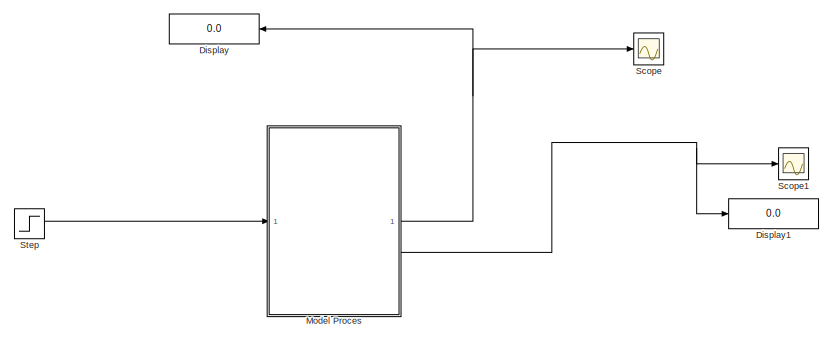
[diagram: root canvas - part 1/4, top left region]
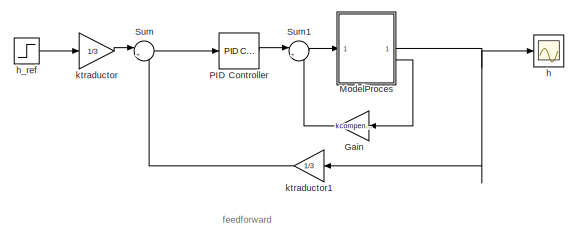
[diagram: root canvas - part 2/4, central region]
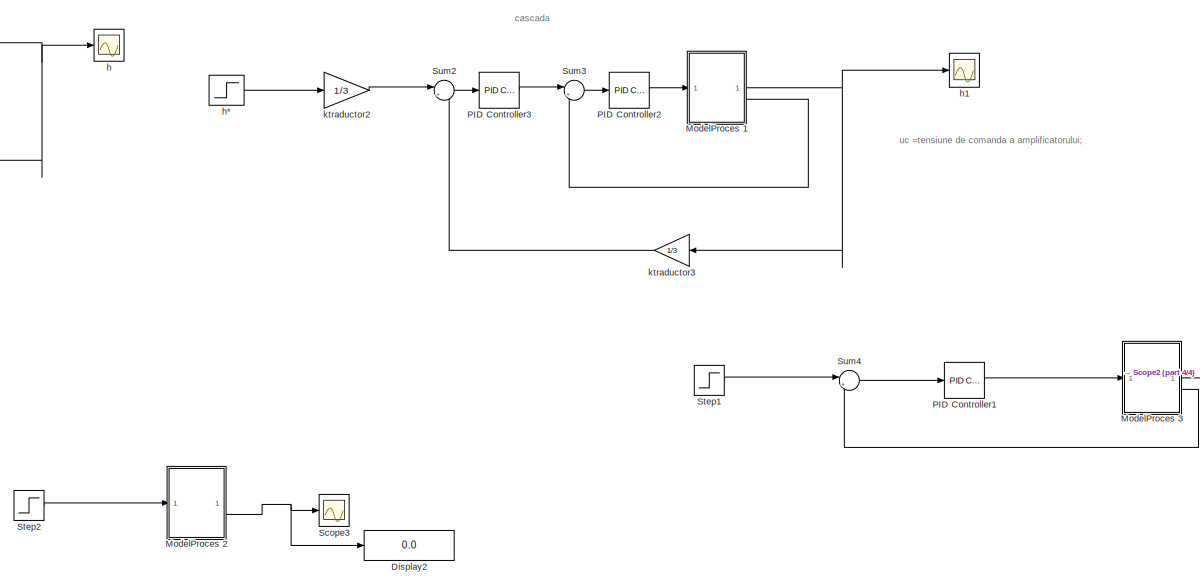
[diagram: root canvas - part 3/4, center side, full height]
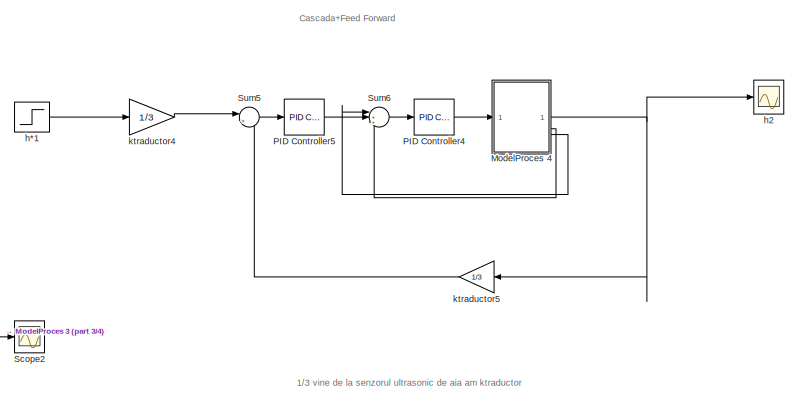
[diagram: root canvas - part 4/4, middle right region]
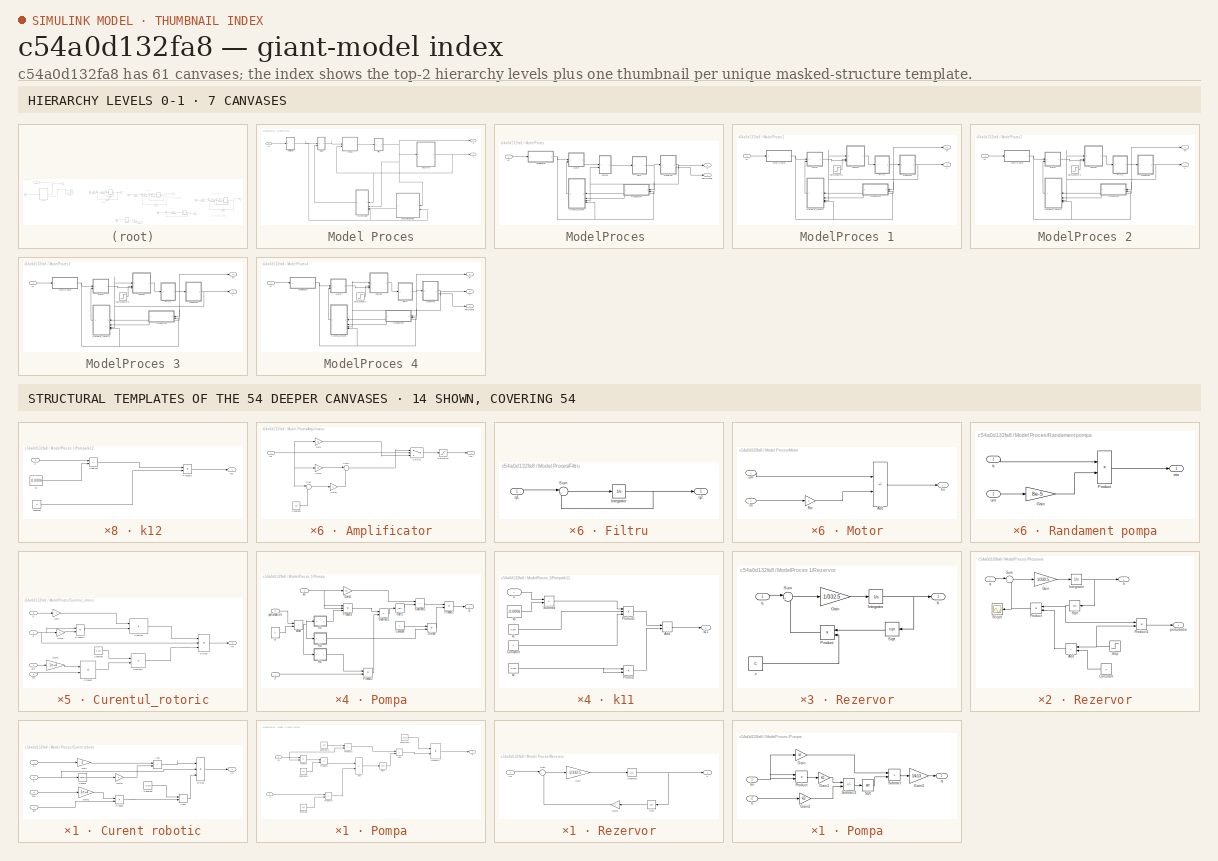
[diagram: thumbnail index - top-2 hierarchy levels (7 canvases) + 14 structural-template representatives of the remaining 54 canvases]
MODEL slx_c54a0d132fa8
KIND model
CONFIG AbsTol = auto
CONFIG EnableMultiTasking = off
CONFIG FixedStep = auto
CONFIG MaxStep = auto
CONFIG MinStep = auto
CONFIG RelTol = 1e-3
CONFIG SampleTimeConstraint = Unconstrained
CONFIG SolverName = VariableStepAuto
CONFIG StartTime = 0.0
CONFIG StopTime = 1000
BLOCK [Display] Display
  Decimation = 1
  NameLocation = top
BLOCK [Display] Display1
  Decimation = 1
BLOCK [Display] Display2
  Decimation = 1
BLOCK [Gain] Gain
  Gain = kcompensare
BLOCK [SubSystem] Model Proces
BLOCK [SubSystem] Model Proces/Amplificator
BLOCK [Constant] Model Proces/Amplificator/Constant
  Value = 8.1
BLOCK [Gain] Model Proces/Amplificator/Gain
  Gain = 2.2
BLOCK [Gain] Model Proces/Amplificator/Gain1
  Gain = 2.2
BLOCK [Gain] Model Proces/Amplificator/Gain2
  Gain = 5
BLOCK [Saturate] Model Proces/Amplificator/Saturation
  LowerLimit = 0
  UpperLimit = 22
BLOCK [Sum] Model Proces/Amplificator/Sum
  Inputs = |+-
BLOCK [Sum] Model Proces/Amplificator/Sum1
  Inputs = |++
BLOCK [Switch] Model Proces/Amplificator/Switch
  Criteria = u2 > Threshold
  InputSameDT = off
  SaturateOnIntegerOverflow = off
  Threshold = 8.1
BLOCK [Inport] Model Proces/Amplificator/ua
BLOCK [Outport] Model Proces/Amplificator/um
BLOCK [SubSystem] Model Proces/Curent robotic
  NameLocation = top
BLOCK [Sum] Model Proces/Curent robotic/Add
  IconShape = rectangular
BLOCK [Sum] Model Proces/Curent robotic/Add2
  IconShape = rectangular
BLOCK [Constant] Model Proces/Curent robotic/Constant
  Value = 0.001
BLOCK [Product] Model Proces/Curent robotic/Divide
  Inputs = **/
BLOCK [Gain] Model Proces/Curent robotic/Gain
  Gain = 2
BLOCK [Gain] Model Proces/Curent robotic/Gain1
  Gain = 1e+4
BLOCK [Gain] Model Proces/Curent robotic/Gain2
  Gain = k
BLOCK [Product] Model Proces/Curent robotic/Product
BLOCK [Math] Model Proces/Curent robotic/Square
  Operator = square
BLOCK [Inport] Model Proces/Curent robotic/eta
  Port = 3
BLOCK [Inport] Model Proces/Curent robotic/h
BLOCK [Outport] Model Proces/Curent robotic/im
BLOCK [Inport] Model Proces/Curent robotic/q
  Port = 2
BLOCK [Inport] Model Proces/Curent robotic/um
  Port = 4
BLOCK [SubSystem] Model Proces/Filtru
BLOCK [Integrator] Model Proces/Filtru/Integrator
  InitialCondition = q0
BLOCK [Sum] Model Proces/Filtru/Sum
  Inputs = |+-
BLOCK [Inport] Model Proces/Filtru/q1
BLOCK [Outport] Model Proces/Filtru/q2
BLOCK [SubSystem] Model Proces/Motor
BLOCK [Sum] Model Proces/Motor/Add
  IconShape = rectangular
  Inputs = +-
BLOCK [Gain] Model Proces/Motor/Rm
  Gain = 3
BLOCK [Inport] Model Proces/Motor/im
  Port = 2
BLOCK [Outport] Model Proces/Motor/kn
BLOCK [Inport] Model Proces/Motor/um
BLOCK [SubSystem] Model Proces/Pompa
BLOCK [Sum] Model Proces/Pompa/Add
  IconShape = rectangular
  Inputs = +-
BLOCK [Sum] Model Proces/Pompa/Add1
  IconShape = rectangular
BLOCK [Constant] Model Proces/Pompa/Constant
  Value = k12
BLOCK [Constant] Model Proces/Pompa/Constant1
  Value = k11
BLOCK [Constant] Model Proces/Pompa/Constant2
  Value = 1/k13
BLOCK [Constant] Model Proces/Pompa/Constant3
  Value = k2
BLOCK [Product] Model Proces/Pompa/Product
BLOCK [Product] Model Proces/Pompa/Product1
BLOCK [Product] Model Proces/Pompa/Product2
BLOCK [Product] Model Proces/Pompa/Product3
BLOCK [Product] Model Proces/Pompa/Product4
BLOCK [Sqrt] Model Proces/Pompa/Sqrt
BLOCK [Inport] Model Proces/Pompa/h
  Port = 2
BLOCK [Inport] Model Proces/Pompa/kn
BLOCK [Outport] Model Proces/Pompa/q
BLOCK [SubSystem] Model Proces/Randament pompa
  NameLocation = top
BLOCK [Gain] Model Proces/Randament pompa/Gain
  Gain = 8e-5
BLOCK [Product] Model Proces/Randament pompa/Product
BLOCK [Outport] Model Proces/Randament pompa/eta
BLOCK [Inport] Model Proces/Randament pompa/q
BLOCK [Inport] Model Proces/Randament pompa/um
  Port = 2
BLOCK [SubSystem] Model Proces/Rezervor
BLOCK [Gain] Model Proces/Rezervor/Gain
  Gain = 1/332.5
BLOCK [Gain] Model Proces/Rezervor/Gain1
  Gain = C
  NameLocation = top
BLOCK [Integrator] Model Proces/Rezervor/Integrator
  InitialCondition = h0
BLOCK [Sqrt] Model Proces/Rezervor/Sqrt
  NameLocation = top
BLOCK [Sum] Model Proces/Rezervor/Sum
  Inputs = |+-
BLOCK [Outport] Model Proces/Rezervor/h
BLOCK [Inport] Model Proces/Rezervor/ln1
BLOCK [Outport] Model Proces/h
  Port = 2
BLOCK [Outport] Model Proces/q
BLOCK [Inport] Model Proces/uc
BLOCK [SubSystem] ModelProces 
BLOCK [SubSystem] ModelProces /Amplificator 
BLOCK [Constant] ModelProces /Amplificator /Constant
  Value = 8.1
BLOCK [Gain] ModelProces /Amplificator /Gain
  Gain = 2.2
BLOCK [Gain] ModelProces /Amplificator /Gain1
  Gain = 2.2
BLOCK [Gain] ModelProces /Amplificator /Gain2
  Gain = 5
BLOCK [Saturate] ModelProces /Amplificator /Saturation
  LowerLimit = 0
  UpperLimit = 22
BLOCK [Sum] ModelProces /Amplificator /Sum
  Inputs = |++
BLOCK [Sum] ModelProces /Amplificator /Sum1
  Inputs = |+-
BLOCK [Switch] ModelProces /Amplificator /Switch
  InputSameDT = off
  SaturateOnIntegerOverflow = off
  Threshold = 8.1
BLOCK [Inport] ModelProces /Amplificator /ua
BLOCK [Outport] ModelProces /Amplificator /um 
BLOCK [SubSystem] ModelProces /Curentul_rotoric
BLOCK [Constant] ModelProces /Curentul_rotoric/Constant
  Value = 0.001
BLOCK [Product] ModelProces /Curentul_rotoric/Divide
  Inputs = **/
BLOCK [Gain] ModelProces /Curentul_rotoric/Gain
  Gain = 2
BLOCK [Gain] ModelProces /Curentul_rotoric/Gain1
  Gain = k
BLOCK [Gain] ModelProces /Curentul_rotoric/Gain2
  Gain = 1e+4
BLOCK [Product] ModelProces /Curentul_rotoric/Product
BLOCK [Product] ModelProces /Curentul_rotoric/Product1
BLOCK [Sum] ModelProces /Curentul_rotoric/Subtract
  IconShape = rectangular
BLOCK [Sum] ModelProces /Curentul_rotoric/Subtract1
  IconShape = rectangular
BLOCK [Inport] ModelProces /Curentul_rotoric/eta
  Port = 2
BLOCK [Inport] ModelProces /Curentul_rotoric/h
  Port = 3
BLOCK [Outport] ModelProces /Curentul_rotoric/im
BLOCK [Inport] ModelProces /Curentul_rotoric/q
BLOCK [Inport] ModelProces /Curentul_rotoric/um
  Port = 4
BLOCK [SubSystem] ModelProces /Filtru
BLOCK [Integrator] ModelProces /Filtru/Integrator
  InitialCondition = q0
BLOCK [Sum] ModelProces /Filtru/Sum
  Inputs = |+-
BLOCK [Inport] ModelProces /Filtru/q
BLOCK [Outport] ModelProces /Filtru/q_f
BLOCK [SubSystem] ModelProces /Motor 
BLOCK [Sum] ModelProces /Motor /Add
  IconShape = rectangular
  Inputs = +-
BLOCK [Gain] ModelProces /Motor /Rm
  Gain = 3
BLOCK [Inport] ModelProces /Motor /im
  Port = 2
BLOCK [Outport] ModelProces /Motor /kn
BLOCK [Inport] ModelProces /Motor /um
BLOCK [SubSystem] ModelProces /Pompa
BLOCK [Gain] ModelProces /Pompa/Gain
  Gain = k2
BLOCK [Gain] ModelProces /Pompa/Gain1
  Gain = k11
BLOCK [Gain] ModelProces /Pompa/Gain2
  Gain = k12
BLOCK [Gain] ModelProces /Pompa/Gain3
  Gain = 1/k13
BLOCK [Product] ModelProces /Pompa/Product
BLOCK [Sqrt] ModelProces /Pompa/Sqrt
BLOCK [Sum] ModelProces /Pompa/Subtract
  IconShape = rectangular
BLOCK [Sum] ModelProces /Pompa/Subtract1
  IconShape = rectangular
  Inputs = +-
BLOCK [Inport] ModelProces /Pompa/h
  Port = 2
BLOCK [Inport] ModelProces /Pompa/kn
BLOCK [Outport] ModelProces /Pompa/q
BLOCK [SubSystem] ModelProces /Randament
BLOCK [Gain] ModelProces /Randament/Gain
  Gain = 8e-5
BLOCK [Product] ModelProces /Randament/Product
BLOCK [Outport] ModelProces /Randament/eta 
BLOCK [Inport] ModelProces /Randament/q 
BLOCK [Inport] ModelProces /Randament/um
  Port = 2
BLOCK [SubSystem] ModelProces /Rezervor
BLOCK [Sum] ModelProces /Rezervor/Add
  IconShape = rectangular
BLOCK [Constant] ModelProces /Rezervor/Constant
  Value = C
BLOCK [Gain] ModelProces /Rezervor/Gain
  Gain = 1/332.5
BLOCK [Integrator] ModelProces /Rezervor/Integrator
  InitialCondition = h0
BLOCK [Product] ModelProces /Rezervor/Product
BLOCK [Product] ModelProces /Rezervor/Product1
BLOCK [Scope] ModelProces /Rezervor/Scope
  Floating = off
  NumInputPorts = 1
  ScopeSpecificationString = Simulink.scopes.TimeScopeBlockCfg('CurrentConfiguration', extmgr.ConfigurationSet(extmgr.Configuration('Core','General UI',true),extmgr.Configuration('Core','Source UI',true),extmgr.Configuration('Sources','WiredSimulink',true,'DataLoggingVariableName','ScopeData1'),extmgr.Configuration('Visuals','Time Domain',true),extmgr.Configuration('Tools','Plot Navigation',true),extmgr.Configuration('Tools',...<+40ch>
BLOCK [Sqrt] ModelProces /Rezervor/Sqrt
BLOCK [Step] ModelProces /Rezervor/Step
  SampleTime = 0
  Time = 500
BLOCK [Sum] ModelProces /Rezervor/Sum
  Inputs = |+-
BLOCK [Outport] ModelProces /Rezervor/h
BLOCK [Outport] ModelProces /Rezervor/perturbatie
  Port = 2
BLOCK [Inport] ModelProces /Rezervor/q
BLOCK [Outport] ModelProces /h
BLOCK [Outport] ModelProces /perturbatie
  Port = 2
BLOCK [Inport] ModelProces /uc
BLOCK [SubSystem] ModelProces 1
BLOCK [SubSystem] ModelProces 1/Amplificator 
BLOCK [Constant] ModelProces 1/Amplificator /Constant
  Value = 8.1
BLOCK [Gain] ModelProces 1/Amplificator /Gain
  Gain = 2.2
BLOCK [Gain] ModelProces 1/Amplificator /Gain1
  Gain = 2.2
BLOCK [Gain] ModelProces 1/Amplificator /Gain2
  Gain = 5
BLOCK [Saturate] ModelProces 1/Amplificator /Saturation
  LowerLimit = 0
  UpperLimit = 22
BLOCK [Sum] ModelProces 1/Amplificator /Sum
  Inputs = |++
BLOCK [Sum] ModelProces 1/Amplificator /Sum1
  Inputs = |+-
BLOCK [Switch] ModelProces 1/Amplificator /Switch
  InputSameDT = off
  SaturateOnIntegerOverflow = off
  Threshold = 8.1
BLOCK [Inport] ModelProces 1/Amplificator /ua
BLOCK [Outport] ModelProces 1/Amplificator /um 
BLOCK [SubSystem] ModelProces 1/Curentul_rotoric
BLOCK [Constant] ModelProces 1/Curentul_rotoric/Constant
  Value = 0.001
BLOCK [Product] ModelProces 1/Curentul_rotoric/Divide
  Inputs = **/
BLOCK [Gain] ModelProces 1/Curentul_rotoric/Gain
  Gain = 2
BLOCK [Gain] ModelProces 1/Curentul_rotoric/Gain1
  Gain = k
BLOCK [Gain] ModelProces 1/Curentul_rotoric/Gain2
  Gain = 1e+4
BLOCK [Product] ModelProces 1/Curentul_rotoric/Product
BLOCK [Product] ModelProces 1/Curentul_rotoric/Product1
BLOCK [Sum] ModelProces 1/Curentul_rotoric/Subtract
  IconShape = rectangular
BLOCK [Sum] ModelProces 1/Curentul_rotoric/Subtract1
  IconShape = rectangular
BLOCK [Inport] ModelProces 1/Curentul_rotoric/eta
  Port = 2
BLOCK [Inport] ModelProces 1/Curentul_rotoric/h
  Port = 3
BLOCK [Outport] ModelProces 1/Curentul_rotoric/im
BLOCK [Inport] ModelProces 1/Curentul_rotoric/q
BLOCK [Inport] ModelProces 1/Curentul_rotoric/um
  Port = 4
BLOCK [SubSystem] ModelProces 1/Filtru
BLOCK [Integrator] ModelProces 1/Filtru/Integrator
  InitialCondition = q0
BLOCK [Sum] ModelProces 1/Filtru/Sum
  Inputs = |+-
BLOCK [Inport] ModelProces 1/Filtru/q
BLOCK [Outport] ModelProces 1/Filtru/q_f
BLOCK [SubSystem] ModelProces 1/Motor 
BLOCK [Sum] ModelProces 1/Motor /Add
  IconShape = rectangular
  Inputs = +-
BLOCK [Gain] ModelProces 1/Motor /Rm
  Gain = 3
BLOCK [Inport] ModelProces 1/Motor /im
  Port = 2
BLOCK [Outport] ModelProces 1/Motor /kn
BLOCK [Inport] ModelProces 1/Motor /um
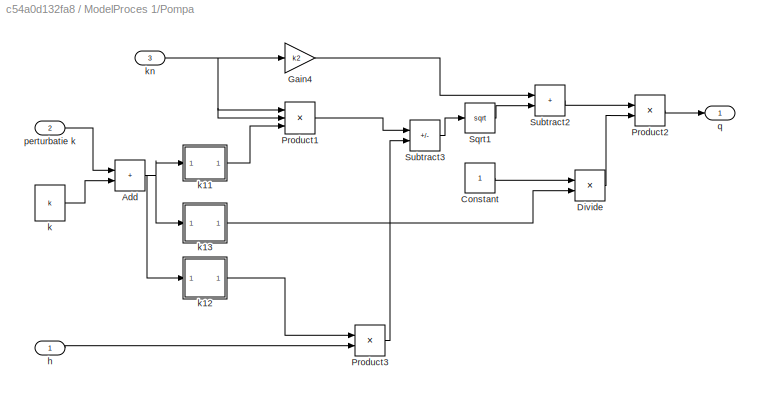
BLOCK [SubSystem] ModelProces 1/Pompa
BLOCK [Sum] ModelProces 1/Pompa/Add
  IconShape = rectangular
BLOCK [Constant] ModelProces 1/Pompa/Constant
BLOCK [Product] ModelProces 1/Pompa/Divide
  Inputs = */
BLOCK [Gain] ModelProces 1/Pompa/Gain4
  Gain = k2
BLOCK [Product] ModelProces 1/Pompa/Product1
  Inputs = 3
BLOCK [Product] ModelProces 1/Pompa/Product2
BLOCK [Product] ModelProces 1/Pompa/Product3
BLOCK [Sqrt] ModelProces 1/Pompa/Sqrt1
BLOCK [Sum] ModelProces 1/Pompa/Subtract2
  IconShape = rectangular
BLOCK [Sum] ModelProces 1/Pompa/Subtract3
  IconShape = rectangular
  Inputs = +-
BLOCK [Inport] ModelProces 1/Pompa/h
BLOCK [Constant] ModelProces 1/Pompa/k 
  Value = k
BLOCK [SubSystem] ModelProces 1/Pompa/k11 
BLOCK [Sum] ModelProces 1/Pompa/k11 /Add
  IconShape = rectangular
BLOCK [Constant] ModelProces 1/Pompa/k11 /Constant
  Value = 4
BLOCK [Product] ModelProces 1/Pompa/k11 /Product
BLOCK [Product] ModelProces 1/Pompa/k11 /Product1
  Inputs = 3
BLOCK [Sum] ModelProces 1/Pompa/k11 /Subtract
  IconShape = rectangular
  Inputs = +-
BLOCK [Inport] ModelProces 1/Pompa/k11 /k
BLOCK [Constant] ModelProces 1/Pompa/k11 /k1
  Value = 0.624
BLOCK [Outport] ModelProces 1/Pompa/k11 /k11
BLOCK [Constant] ModelProces 1/Pompa/k11 /k2
  Value = -0.015
BLOCK [Constant] ModelProces 1/Pompa/k11 /k3
  Value = -0.0006
BLOCK [SubSystem] ModelProces 1/Pompa/k12
BLOCK [Product] ModelProces 1/Pompa/k12/Product1
BLOCK [Sum] ModelProces 1/Pompa/k12/Subtract
  IconShape = rectangular
  Inputs = +-
BLOCK [Constant] ModelProces 1/Pompa/k12/constant 
  Value = 8
BLOCK [Inport] ModelProces 1/Pompa/k12/k
BLOCK [Outport] ModelProces 1/Pompa/k12/k12
BLOCK [Constant] ModelProces 1/Pompa/k12/k3
  Value = -0.0006
BLOCK [SubSystem] ModelProces 1/Pompa/k13
BLOCK [Product] ModelProces 1/Pompa/k13/Product1
BLOCK [Sum] ModelProces 1/Pompa/k13/Subtract
  IconShape = rectangular
  Inputs = +-
BLOCK [Constant] ModelProces 1/Pompa/k13/constant 
  Value = 2
BLOCK [Inport] ModelProces 1/Pompa/k13/k
BLOCK [Outport] ModelProces 1/Pompa/k13/k13
  NameLocation = top
BLOCK [Constant] ModelProces 1/Pompa/k13/k3
  Value = -0.0006
BLOCK [Inport] ModelProces 1/Pompa/kn
  Port = 3
BLOCK [Inport] ModelProces 1/Pompa/perturbatie k
  Port = 2
BLOCK [Outport] ModelProces 1/Pompa/q
BLOCK [SubSystem] ModelProces 1/Randament
BLOCK [Gain] ModelProces 1/Randament/Gain
  Gain = 8e-5
BLOCK [Product] ModelProces 1/Randament/Product
BLOCK [Outport] ModelProces 1/Randament/eta 
BLOCK [Inport] ModelProces 1/Randament/q 
BLOCK [Inport] ModelProces 1/Randament/um
  Port = 2
BLOCK [SubSystem] ModelProces 1/Rezervor
BLOCK [Gain] ModelProces 1/Rezervor/Gain
  Gain = 1/332.5
BLOCK [Integrator] ModelProces 1/Rezervor/Integrator
  InitialCondition = h0
BLOCK [Product] ModelProces 1/Rezervor/Product
  NameLocation = top
BLOCK [Sqrt] ModelProces 1/Rezervor/Sqrt
  NameLocation = top
BLOCK [Sum] ModelProces 1/Rezervor/Sum
  Inputs = |+-
BLOCK [Constant] ModelProces 1/Rezervor/c
  Value = C
BLOCK [Outport] ModelProces 1/Rezervor/h
BLOCK [Inport] ModelProces 1/Rezervor/q
BLOCK [Outport] ModelProces 1/h
BLOCK [Step] ModelProces 1/perturbatie k
  After = 0.09
  SampleTime = 0
  Time = 300
BLOCK [Outport] ModelProces 1/qi
  Port = 2
BLOCK [Inport] ModelProces 1/uc
BLOCK [SubSystem] ModelProces 2
BLOCK [SubSystem] ModelProces 2/Amplificator 
BLOCK [Constant] ModelProces 2/Amplificator /Constant
  Value = 8.1
BLOCK [Gain] ModelProces 2/Amplificator /Gain
  Gain = 2.2
BLOCK [Gain] ModelProces 2/Amplificator /Gain1
  Gain = 2.2
BLOCK [Gain] ModelProces 2/Amplificator /Gain2
  Gain = 5
BLOCK [Saturate] ModelProces 2/Amplificator /Saturation
  LowerLimit = 0
  UpperLimit = 22
BLOCK [Sum] ModelProces 2/Amplificator /Sum
  Inputs = |++
BLOCK [Sum] ModelProces 2/Amplificator /Sum1
  Inputs = |+-
BLOCK [Switch] ModelProces 2/Amplificator /Switch
  InputSameDT = off
  SaturateOnIntegerOverflow = off
  Threshold = 8.1
BLOCK [Inport] ModelProces 2/Amplificator /ua
BLOCK [Outport] ModelProces 2/Amplificator /um 
BLOCK [SubSystem] ModelProces 2/Curentul_rotoric
BLOCK [Constant] ModelProces 2/Curentul_rotoric/Constant
  Value = 0.001
BLOCK [Product] ModelProces 2/Curentul_rotoric/Divide
  Inputs = **/
BLOCK [Gain] ModelProces 2/Curentul_rotoric/Gain
  Gain = 2
BLOCK [Gain] ModelProces 2/Curentul_rotoric/Gain1
  Gain = k
BLOCK [Gain] ModelProces 2/Curentul_rotoric/Gain2
  Gain = 1e+4
BLOCK [Product] ModelProces 2/Curentul_rotoric/Product
BLOCK [Product] ModelProces 2/Curentul_rotoric/Product1
BLOCK [Sum] ModelProces 2/Curentul_rotoric/Subtract
  IconShape = rectangular
BLOCK [Sum] ModelProces 2/Curentul_rotoric/Subtract1
  IconShape = rectangular
BLOCK [Inport] ModelProces 2/Curentul_rotoric/eta
  Port = 2
BLOCK [Inport] ModelProces 2/Curentul_rotoric/h
  Port = 3
BLOCK [Outport] ModelProces 2/Curentul_rotoric/im
BLOCK [Inport] ModelProces 2/Curentul_rotoric/q
BLOCK [Inport] ModelProces 2/Curentul_rotoric/um
  Port = 4
BLOCK [SubSystem] ModelProces 2/Filtru
BLOCK [Integrator] ModelProces 2/Filtru/Integrator
  InitialCondition = q0
BLOCK [Sum] ModelProces 2/Filtru/Sum
  Inputs = |+-
BLOCK [Inport] ModelProces 2/Filtru/q
BLOCK [Outport] ModelProces 2/Filtru/q_f
BLOCK [SubSystem] ModelProces 2/Motor 
BLOCK [Sum] ModelProces 2/Motor /Add
  IconShape = rectangular
  Inputs = +-
BLOCK [Gain] ModelProces 2/Motor /Rm
  Gain = 3
BLOCK [Inport] ModelProces 2/Motor /im
  Port = 2
BLOCK [Outport] ModelProces 2/Motor /kn
BLOCK [Inport] ModelProces 2/Motor /um
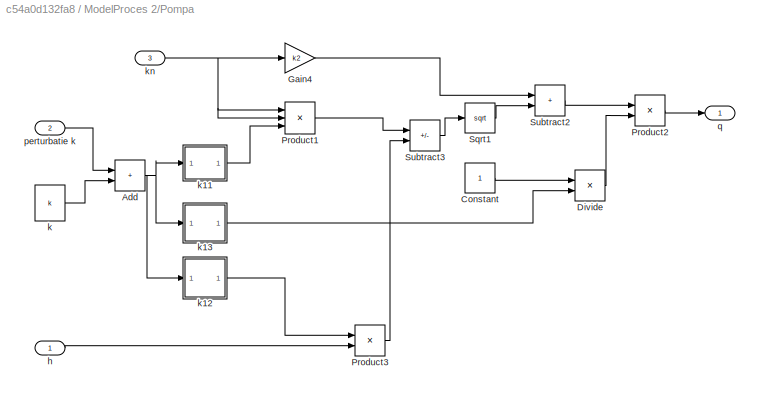
BLOCK [SubSystem] ModelProces 2/Pompa
BLOCK [Sum] ModelProces 2/Pompa/Add
  IconShape = rectangular
BLOCK [Constant] ModelProces 2/Pompa/Constant
BLOCK [Product] ModelProces 2/Pompa/Divide
  Inputs = */
BLOCK [Gain] ModelProces 2/Pompa/Gain4
  Gain = k2
BLOCK [Product] ModelProces 2/Pompa/Product1
  Inputs = 3
BLOCK [Product] ModelProces 2/Pompa/Product2
BLOCK [Product] ModelProces 2/Pompa/Product3
BLOCK [Sqrt] ModelProces 2/Pompa/Sqrt1
BLOCK [Sum] ModelProces 2/Pompa/Subtract2
  IconShape = rectangular
BLOCK [Sum] ModelProces 2/Pompa/Subtract3
  IconShape = rectangular
  Inputs = +-
BLOCK [Inport] ModelProces 2/Pompa/h
BLOCK [Constant] ModelProces 2/Pompa/k 
  Value = k
BLOCK [SubSystem] ModelProces 2/Pompa/k11 
BLOCK [Sum] ModelProces 2/Pompa/k11 /Add
  IconShape = rectangular
BLOCK [Constant] ModelProces 2/Pompa/k11 /Constant
  Value = 4
BLOCK [Product] ModelProces 2/Pompa/k11 /Product
BLOCK [Product] ModelProces 2/Pompa/k11 /Product1
  Inputs = 3
BLOCK [Sum] ModelProces 2/Pompa/k11 /Subtract
  IconShape = rectangular
  Inputs = +-
BLOCK [Inport] ModelProces 2/Pompa/k11 /k
BLOCK [Constant] ModelProces 2/Pompa/k11 /k1
  Value = 0.624
BLOCK [Outport] ModelProces 2/Pompa/k11 /k11
BLOCK [Constant] ModelProces 2/Pompa/k11 /k2
  Value = -0.015
BLOCK [Constant] ModelProces 2/Pompa/k11 /k3
  Value = -0.0006
BLOCK [SubSystem] ModelProces 2/Pompa/k12
BLOCK [Product] ModelProces 2/Pompa/k12/Product1
BLOCK [Sum] ModelProces 2/Pompa/k12/Subtract
  IconShape = rectangular
  Inputs = +-
BLOCK [Constant] ModelProces 2/Pompa/k12/constant 
  Value = 8
BLOCK [Inport] ModelProces 2/Pompa/k12/k
BLOCK [Outport] ModelProces 2/Pompa/k12/k12
BLOCK [Constant] ModelProces 2/Pompa/k12/k3
  Value = -0.0006
BLOCK [SubSystem] ModelProces 2/Pompa/k13
BLOCK [Product] ModelProces 2/Pompa/k13/Product1
BLOCK [Sum] ModelProces 2/Pompa/k13/Subtract
  IconShape = rectangular
  Inputs = +-
BLOCK [Constant] ModelProces 2/Pompa/k13/constant 
  Value = 2
BLOCK [Inport] ModelProces 2/Pompa/k13/k
BLOCK [Outport] ModelProces 2/Pompa/k13/k13
  NameLocation = top
BLOCK [Constant] ModelProces 2/Pompa/k13/k3
  Value = -0.0006
BLOCK [Inport] ModelProces 2/Pompa/kn
  Port = 3
BLOCK [Inport] ModelProces 2/Pompa/perturbatie k
  Port = 2
BLOCK [Outport] ModelProces 2/Pompa/q
BLOCK [SubSystem] ModelProces 2/Randament
BLOCK [Gain] ModelProces 2/Randament/Gain
  Gain = 8e-5
BLOCK [Product] ModelProces 2/Randament/Product
BLOCK [Outport] ModelProces 2/Randament/eta 
BLOCK [Inport] ModelProces 2/Randament/q 
BLOCK [Inport] ModelProces 2/Randament/um
  Port = 2
BLOCK [SubSystem] ModelProces 2/Rezervor
BLOCK [Gain] ModelProces 2/Rezervor/Gain
  Gain = 1/332.5
BLOCK [Integrator] ModelProces 2/Rezervor/Integrator
  InitialCondition = h0
BLOCK [Product] ModelProces 2/Rezervor/Product
  NameLocation = top
BLOCK [Sqrt] ModelProces 2/Rezervor/Sqrt
  NameLocation = top
BLOCK [Sum] ModelProces 2/Rezervor/Sum
  Inputs = |+-
BLOCK [Constant] ModelProces 2/Rezervor/c
  Value = C
BLOCK [Outport] ModelProces 2/Rezervor/h
BLOCK [Inport] ModelProces 2/Rezervor/q
BLOCK [Outport] ModelProces 2/h
BLOCK [Step] ModelProces 2/perturbatie k
  After = 0.03
  SampleTime = 0
  Time = 300
BLOCK [Outport] ModelProces 2/qi
  Port = 2
BLOCK [Inport] ModelProces 2/uc
BLOCK [SubSystem] ModelProces 3
BLOCK [SubSystem] ModelProces 3/Amplificator 
BLOCK [Constant] ModelProces 3/Amplificator /Constant
  Value = 8.1
BLOCK [Gain] ModelProces 3/Amplificator /Gain
  Gain = 2.2
BLOCK [Gain] ModelProces 3/Amplificator /Gain1
  Gain = 2.2
BLOCK [Gain] ModelProces 3/Amplificator /Gain2
  Gain = 5
BLOCK [Saturate] ModelProces 3/Amplificator /Saturation
  LowerLimit = 0
  UpperLimit = 22
BLOCK [Sum] ModelProces 3/Amplificator /Sum
  Inputs = |++
BLOCK [Sum] ModelProces 3/Amplificator /Sum1
  Inputs = |+-
BLOCK [Switch] ModelProces 3/Amplificator /Switch
  InputSameDT = off
  SaturateOnIntegerOverflow = off
  Threshold = 8.1
BLOCK [Inport] ModelProces 3/Amplificator /ua
BLOCK [Outport] ModelProces 3/Amplificator /um 
BLOCK [SubSystem] ModelProces 3/Curentul_rotoric
BLOCK [Constant] ModelProces 3/Curentul_rotoric/Constant
  Value = 0.001
BLOCK [Product] ModelProces 3/Curentul_rotoric/Divide
  Inputs = **/
BLOCK [Gain] ModelProces 3/Curentul_rotoric/Gain
  Gain = 2
BLOCK [Gain] ModelProces 3/Curentul_rotoric/Gain1
  Gain = k
BLOCK [Gain] ModelProces 3/Curentul_rotoric/Gain2
  Gain = 1e+4
BLOCK [Product] ModelProces 3/Curentul_rotoric/Product
BLOCK [Product] ModelProces 3/Curentul_rotoric/Product1
BLOCK [Sum] ModelProces 3/Curentul_rotoric/Subtract
  IconShape = rectangular
BLOCK [Sum] ModelProces 3/Curentul_rotoric/Subtract1
  IconShape = rectangular
BLOCK [Inport] ModelProces 3/Curentul_rotoric/eta
  Port = 2
BLOCK [Inport] ModelProces 3/Curentul_rotoric/h
  Port = 3
BLOCK [Outport] ModelProces 3/Curentul_rotoric/im
BLOCK [Inport] ModelProces 3/Curentul_rotoric/q
BLOCK [Inport] ModelProces 3/Curentul_rotoric/um
  Port = 4
BLOCK [SubSystem] ModelProces 3/Filtru
BLOCK [Integrator] ModelProces 3/Filtru/Integrator
  InitialCondition = q0
BLOCK [Sum] ModelProces 3/Filtru/Sum
  Inputs = |+-
BLOCK [Inport] ModelProces 3/Filtru/q
BLOCK [Outport] ModelProces 3/Filtru/q_f
BLOCK [SubSystem] ModelProces 3/Motor 
BLOCK [Sum] ModelProces 3/Motor /Add
  IconShape = rectangular
  Inputs = +-
BLOCK [Gain] ModelProces 3/Motor /Rm
  Gain = 3
BLOCK [Inport] ModelProces 3/Motor /im
  Port = 2
BLOCK [Outport] ModelProces 3/Motor /kn
BLOCK [Inport] ModelProces 3/Motor /um
BLOCK [SubSystem] ModelProces 3/Pompa
BLOCK [Sum] ModelProces 3/Pompa/Add
  IconShape = rectangular
BLOCK [Constant] ModelProces 3/Pompa/Constant
BLOCK [Product] ModelProces 3/Pompa/Divide
  Inputs = */
BLOCK [Gain] ModelProces 3/Pompa/Gain4
  Gain = k2
BLOCK [Product] ModelProces 3/Pompa/Product1
  Inputs = 3
BLOCK [Product] ModelProces 3/Pompa/Product2
BLOCK [Product] ModelProces 3/Pompa/Product3
BLOCK [Sqrt] ModelProces 3/Pompa/Sqrt1
BLOCK [Sum] ModelProces 3/Pompa/Subtract2
  IconShape = rectangular
BLOCK [Sum] ModelProces 3/Pompa/Subtract3
  IconShape = rectangular
  Inputs = +-
BLOCK [Inport] ModelProces 3/Pompa/h
BLOCK [Constant] ModelProces 3/Pompa/k 
  Value = k
BLOCK [SubSystem] ModelProces 3/Pompa/k11 
BLOCK [Sum] ModelProces 3/Pompa/k11 /Add
  IconShape = rectangular
BLOCK [Constant] ModelProces 3/Pompa/k11 /Constant
  Value = 4
BLOCK [Product] ModelProces 3/Pompa/k11 /Product
BLOCK [Product] ModelProces 3/Pompa/k11 /Product1
  Inputs = 3
BLOCK [Sum] ModelProces 3/Pompa/k11 /Subtract
  IconShape = rectangular
  Inputs = +-
BLOCK [Inport] ModelProces 3/Pompa/k11 /k
BLOCK [Constant] ModelProces 3/Pompa/k11 /k1
  Value = 0.624
BLOCK [Outport] ModelProces 3/Pompa/k11 /k11
BLOCK [Constant] ModelProces 3/Pompa/k11 /k2
  Value = -0.015
BLOCK [Constant] ModelProces 3/Pompa/k11 /k3
  Value = -0.0006
BLOCK [SubSystem] ModelProces 3/Pompa/k12
BLOCK [Product] ModelProces 3/Pompa/k12/Product1
BLOCK [Sum] ModelProces 3/Pompa/k12/Subtract
  IconShape = rectangular
  Inputs = +-
BLOCK [Constant] ModelProces 3/Pompa/k12/constant 
  Value = 8
BLOCK [Inport] ModelProces 3/Pompa/k12/k
BLOCK [Outport] ModelProces 3/Pompa/k12/k12
BLOCK [Constant] ModelProces 3/Pompa/k12/k3
  Value = -0.0006
BLOCK [SubSystem] ModelProces 3/Pompa/k13
BLOCK [Product] ModelProces 3/Pompa/k13/Product1
BLOCK [Sum] ModelProces 3/Pompa/k13/Subtract
  IconShape = rectangular
  Inputs = +-
BLOCK [Constant] ModelProces 3/Pompa/k13/constant 
  Value = 2
BLOCK [Inport] ModelProces 3/Pompa/k13/k
BLOCK [Outport] ModelProces 3/Pompa/k13/k13
  NameLocation = top
BLOCK [Constant] ModelProces 3/Pompa/k13/k3
  Value = -0.0006
BLOCK [Inport] ModelProces 3/Pompa/kn
  Port = 3
BLOCK [Inport] ModelProces 3/Pompa/perturbatie k
  Port = 2
BLOCK [Outport] ModelProces 3/Pompa/q
BLOCK [SubSystem] ModelProces 3/Randament
BLOCK [Gain] ModelProces 3/Randament/Gain
  Gain = 8e-5
BLOCK [Product] ModelProces 3/Randament/Product
BLOCK [Outport] ModelProces 3/Randament/eta 
BLOCK [Inport] ModelProces 3/Randament/q 
BLOCK [Inport] ModelProces 3/Randament/um
  Port = 2
BLOCK [SubSystem] ModelProces 3/Rezervor
BLOCK [Gain] ModelProces 3/Rezervor/Gain
  Gain = 1/332.5
BLOCK [Integrator] ModelProces 3/Rezervor/Integrator
  InitialCondition = h0
BLOCK [Product] ModelProces 3/Rezervor/Product
  NameLocation = top
BLOCK [Sqrt] ModelProces 3/Rezervor/Sqrt
  NameLocation = top
BLOCK [Sum] ModelProces 3/Rezervor/Sum
  Inputs = |+-
BLOCK [Constant] ModelProces 3/Rezervor/c
  Value = C
BLOCK [Outport] ModelProces 3/Rezervor/h
BLOCK [Inport] ModelProces 3/Rezervor/q
BLOCK [Outport] ModelProces 3/h
BLOCK [Step] ModelProces 3/perturbatie k
  After = 0.03
  SampleTime = 0
  Time = 300
BLOCK [Outport] ModelProces 3/qi
  Port = 2
BLOCK [Inport] ModelProces 3/uc
BLOCK [SubSystem] ModelProces 4
BLOCK [SubSystem] ModelProces 4/Amplificator 
BLOCK [Constant] ModelProces 4/Amplificator /Constant
  Value = 8.1
BLOCK [Gain] ModelProces 4/Amplificator /Gain
  Gain = 2.2
BLOCK [Gain] ModelProces 4/Amplificator /Gain1
  Gain = 2.2
BLOCK [Gain] ModelProces 4/Amplificator /Gain2
  Gain = 5
BLOCK [Saturate] ModelProces 4/Amplificator /Saturation
  LowerLimit = 0
  UpperLimit = 22
BLOCK [Sum] ModelProces 4/Amplificator /Sum
  Inputs = |++
BLOCK [Sum] ModelProces 4/Amplificator /Sum1
  Inputs = |+-
BLOCK [Switch] ModelProces 4/Amplificator /Switch
  InputSameDT = off
  SaturateOnIntegerOverflow = off
  Threshold = 8.1
BLOCK [Inport] ModelProces 4/Amplificator /ua
BLOCK [Outport] ModelProces 4/Amplificator /um 
BLOCK [SubSystem] ModelProces 4/Curentul_rotoric
BLOCK [Constant] ModelProces 4/Curentul_rotoric/Constant
  Value = 0.001
BLOCK [Product] ModelProces 4/Curentul_rotoric/Divide
  Inputs = **/
BLOCK [Gain] ModelProces 4/Curentul_rotoric/Gain
  Gain = 2
BLOCK [Gain] ModelProces 4/Curentul_rotoric/Gain1
  Gain = k
BLOCK [Gain] ModelProces 4/Curentul_rotoric/Gain2
  Gain = 1e+4
BLOCK [Product] ModelProces 4/Curentul_rotoric/Product
BLOCK [Product] ModelProces 4/Curentul_rotoric/Product1
BLOCK [Sum] ModelProces 4/Curentul_rotoric/Subtract
  IconShape = rectangular
BLOCK [Sum] ModelProces 4/Curentul_rotoric/Subtract1
  IconShape = rectangular
BLOCK [Inport] ModelProces 4/Curentul_rotoric/eta
  Port = 2
BLOCK [Inport] ModelProces 4/Curentul_rotoric/h
  Port = 3
BLOCK [Outport] ModelProces 4/Curentul_rotoric/im
BLOCK [Inport] ModelProces 4/Curentul_rotoric/q
BLOCK [Inport] ModelProces 4/Curentul_rotoric/um
  Port = 4
BLOCK [SubSystem] ModelProces 4/Filtru
BLOCK [Integrator] ModelProces 4/Filtru/Integrator
  InitialCondition = q0
BLOCK [Sum] ModelProces 4/Filtru/Sum
  Inputs = |+-
BLOCK [Inport] ModelProces 4/Filtru/q
BLOCK [Outport] ModelProces 4/Filtru/q_f
BLOCK [SubSystem] ModelProces 4/Motor 
BLOCK [Sum] ModelProces 4/Motor /Add
  IconShape = rectangular
  Inputs = +-
BLOCK [Gain] ModelProces 4/Motor /Rm
  Gain = 3
BLOCK [Inport] ModelProces 4/Motor /im
  Port = 2
BLOCK [Outport] ModelProces 4/Motor /kn
BLOCK [Inport] ModelProces 4/Motor /um
BLOCK [Outport] ModelProces 4/Peturbatie
  Port = 3
BLOCK [SubSystem] ModelProces 4/Pompa
BLOCK [Sum] ModelProces 4/Pompa/Add
  IconShape = rectangular
BLOCK [Constant] ModelProces 4/Pompa/Constant
BLOCK [Product] ModelProces 4/Pompa/Divide
  Inputs = */
BLOCK [Gain] ModelProces 4/Pompa/Gain4
  Gain = k2
BLOCK [Product] ModelProces 4/Pompa/Product1
  Inputs = 3
BLOCK [Product] ModelProces 4/Pompa/Product2
BLOCK [Product] ModelProces 4/Pompa/Product3
BLOCK [Sqrt] ModelProces 4/Pompa/Sqrt1
BLOCK [Sum] ModelProces 4/Pompa/Subtract2
  IconShape = rectangular
BLOCK [Sum] ModelProces 4/Pompa/Subtract3
  IconShape = rectangular
  Inputs = +-
BLOCK [Inport] ModelProces 4/Pompa/h
BLOCK [Constant] ModelProces 4/Pompa/k 
  Value = k
BLOCK [SubSystem] ModelProces 4/Pompa/k11 
BLOCK [Sum] ModelProces 4/Pompa/k11 /Add
  IconShape = rectangular
BLOCK [Constant] ModelProces 4/Pompa/k11 /Constant
  Value = 4
BLOCK [Product] ModelProces 4/Pompa/k11 /Product
BLOCK [Product] ModelProces 4/Pompa/k11 /Product1
  Inputs = 3
BLOCK [Sum] ModelProces 4/Pompa/k11 /Subtract
  IconShape = rectangular
  Inputs = +-
BLOCK [Inport] ModelProces 4/Pompa/k11 /k
BLOCK [Constant] ModelProces 4/Pompa/k11 /k1
  Value = 0.624
BLOCK [Outport] ModelProces 4/Pompa/k11 /k11
BLOCK [Constant] ModelProces 4/Pompa/k11 /k2
  Value = -0.015
BLOCK [Constant] ModelProces 4/Pompa/k11 /k3
  Value = -0.0006
BLOCK [SubSystem] ModelProces 4/Pompa/k12
BLOCK [Product] ModelProces 4/Pompa/k12/Product1
BLOCK [Sum] ModelProces 4/Pompa/k12/Subtract
  IconShape = rectangular
  Inputs = +-
BLOCK [Constant] ModelProces 4/Pompa/k12/constant 
  Value = 8
BLOCK [Inport] ModelProces 4/Pompa/k12/k
BLOCK [Outport] ModelProces 4/Pompa/k12/k12
BLOCK [Constant] ModelProces 4/Pompa/k12/k3
  Value = -0.0006
BLOCK [SubSystem] ModelProces 4/Pompa/k13
BLOCK [Product] ModelProces 4/Pompa/k13/Product1
BLOCK [Sum] ModelProces 4/Pompa/k13/Subtract
  IconShape = rectangular
  Inputs = +-
BLOCK [Constant] ModelProces 4/Pompa/k13/constant 
  Value = 2
BLOCK [Inport] ModelProces 4/Pompa/k13/k
BLOCK [Outport] ModelProces 4/Pompa/k13/k13
  NameLocation = top
BLOCK [Constant] ModelProces 4/Pompa/k13/k3
  Value = -0.0006
BLOCK [Inport] ModelProces 4/Pompa/kn
  Port = 3
BLOCK [Inport] ModelProces 4/Pompa/perturbatie k
  Port = 2
BLOCK [Outport] ModelProces 4/Pompa/q
BLOCK [SubSystem] ModelProces 4/Randament
BLOCK [Gain] ModelProces 4/Randament/Gain
  Gain = 8e-5
BLOCK [Product] ModelProces 4/Randament/Product
BLOCK [Outport] ModelProces 4/Randament/eta 
BLOCK [Inport] ModelProces 4/Randament/q 
BLOCK [Inport] ModelProces 4/Randament/um
  Port = 2
BLOCK [SubSystem] ModelProces 4/Rezervor
BLOCK [Sum] ModelProces 4/Rezervor/Add
  IconShape = rectangular
BLOCK [Constant] ModelProces 4/Rezervor/Constant
  Value = C
BLOCK [Gain] ModelProces 4/Rezervor/Gain
  Gain = 1/332.5
BLOCK [Integrator] ModelProces 4/Rezervor/Integrator
  InitialCondition = h0
BLOCK [Product] ModelProces 4/Rezervor/Product
BLOCK [Product] ModelProces 4/Rezervor/Product1
BLOCK [Scope] ModelProces 4/Rezervor/Scope
  Floating = off
  NumInputPorts = 1
  ScopeSpecificationString = Simulink.scopes.TimeScopeBlockCfg('CurrentConfiguration', extmgr.ConfigurationSet(extmgr.Configuration('Core','General UI',true),extmgr.Configuration('Core','Source UI',true),extmgr.Configuration('Sources','WiredSimulink',true,'DataLoggingVariableName','ScopeData2'),extmgr.Configuration('Visuals','Time Domain',true),extmgr.Configuration('Tools','Plot Navigation',true),extmgr.Configuration('Tools',...<+40ch>
BLOCK [Sqrt] ModelProces 4/Rezervor/Sqrt
BLOCK [Step] ModelProces 4/Rezervor/Step
  After = 4
  SampleTime = 0
  Time = 500
BLOCK [Sum] ModelProces 4/Rezervor/Sum
  Inputs = |+-
BLOCK [Outport] ModelProces 4/Rezervor/h
BLOCK [Outport] ModelProces 4/Rezervor/perturbatie
  Port = 2
BLOCK [Inport] ModelProces 4/Rezervor/q
BLOCK [Outport] ModelProces 4/h
BLOCK [Step] ModelProces 4/perturbatie k
  After = -0.04
  SampleTime = 0
  Time = 300
BLOCK [Outport] ModelProces 4/qi
  Port = 2
BLOCK [Inport] ModelProces 4/uc
BLOCK [Reference] PID Controller  REF=slpidlib/PID Controller
  NameLocation = top
  SourceBlock = slpidlib/PID Controller
  SourceType = PID 1dof
BLOCK [Reference] PID Controller1  REF=slpidlib/PID Controller
  LibrarySourceBlock = simulink/Continuous/PID Controller
  SourceBlock = slpidlib/PID Controller
  SourceType = PID 1dof
BLOCK [Reference] PID Controller2  REF=slpidlib/PID Controller
  NameLocation = top
  SourceBlock = slpidlib/PID Controller
  SourceType = PID 1dof
BLOCK [Reference] PID Controller3  REF=slpidlib/PID Controller
  SourceBlock = slpidlib/PID Controller
  SourceType = PID 1dof
BLOCK [Reference] PID Controller4  REF=slpidlib/PID Controller
  NameLocation = top
  SourceBlock = slpidlib/PID Controller
  SourceType = PID 1dof
BLOCK [Reference] PID Controller5  REF=slpidlib/PID Controller
  SourceBlock = slpidlib/PID Controller
  SourceType = PID 1dof
BLOCK [Scope] Scope
  Floating = off
  NumInputPorts = 1
  ScopeSpecificationString = Simulink.scopes.TimeScopeBlockCfg('CurrentConfiguration', extmgr.ConfigurationSet(extmgr.Configuration('Core','General UI',true),extmgr.Configuration('Core','Source UI',true),extmgr.Configuration('Sources','WiredSimulink',true,'DataLoggingVariableName','ScopeData1'),extmgr.Configuration('Visuals','Time Domain',true,'SerializedDisplays',{struct('MinYLimReal','27.07','MaxYLimReal','47.07','YLabelRea...<+1745ch>
BLOCK [Scope] Scope1
  Floating = off
  NumInputPorts = 1
  ScopeSpecificationString = Simulink.scopes.TimeScopeBlockCfg('CurrentConfiguration', extmgr.ConfigurationSet(extmgr.Configuration('Core','General UI',true),extmgr.Configuration('Core','Source UI',true),extmgr.Configuration('Sources','WiredSimulink',true),extmgr.Configuration('Visuals','Time Domain',true),extmgr.Configuration('Tools','Plot Navigation',true),extmgr.Configuration('Tools','Measurements',true)),'Version','2024b'...<+1ch>
BLOCK [Scope] Scope2
  Floating = off
  NumInputPorts = 1
  ScopeSpecificationString = Simulink.scopes.TimeScopeBlockCfg('CurrentConfiguration', extmgr.ConfigurationSet(extmgr.Configuration('Core','General UI',true),extmgr.Configuration('Core','Source UI',true),extmgr.Configuration('Sources','WiredSimulink',true,'DataLoggingVariableName','ScopeData1'),extmgr.Configuration('Visuals','Time Domain',true,'SerializedDisplays',{struct('MinYLimReal','15.61985','MaxYLimReal','27.22135','YLa...<+1776ch>
BLOCK [Scope] Scope3
  Floating = off
  NumInputPorts = 1
  ScopeSpecificationString = Simulink.scopes.TimeScopeBlockCfg('CurrentConfiguration', extmgr.ConfigurationSet(extmgr.Configuration('Core','General UI',true),extmgr.Configuration('Core','Source UI',true),extmgr.Configuration('Sources','WiredSimulink',true,'DataLoggingVariableName','ScopeData5'),extmgr.Configuration('Visuals','Time Domain',true,'SerializedDisplays',{struct('MinYLimReal','32.30471','MaxYLimReal','42.53649','YLa...<+1796ch>
BLOCK [Step] Step
  After = 7.2
  Before = 6.7
  SampleTime = 0
  Time = 0
BLOCK [Step] Step1
  After = 46.21
  Before = q0
  SampleTime = 0
  Time = 0
BLOCK [Step] Step2
  After = 7.2
  Before = 6.7
  SampleTime = 0
  Time = 0
BLOCK [Sum] Sum
  Inputs = |+-
BLOCK [Sum] Sum1
  Inputs = |++
BLOCK [Sum] Sum2
  Inputs = |+-
BLOCK [Sum] Sum3
  Inputs = |+-
BLOCK [Sum] Sum4
  Inputs = |+-
BLOCK [Sum] Sum5
  Inputs = |+-
BLOCK [Sum] Sum6
  Inputs = |++-
BLOCK [Scope] h
  Floating = off
  NumInputPorts = 1
  ScopeSpecificationString = Simulink.scopes.TimeScopeBlockCfg('CurrentConfiguration', extmgr.ConfigurationSet(extmgr.Configuration('Core','General UI',true),extmgr.Configuration('Core','Source UI',true),extmgr.Configuration('Sources','WiredSimulink',true,'DataLoggingVariableName','ScopeData2'),extmgr.Configuration('Visuals','Time Domain',true,'SerializedDisplays',{struct('MinYLimReal','16.39383','MaxYLimReal','20.25555','YLa...<+1497ch>
BLOCK [Step] h*
  After = h1
  Before = h0
  SampleTime = 0
  Time = 0
BLOCK [Step] h*1
  After = h1
  Before = h0
  SampleTime = 0
  Time = 0
BLOCK [Scope] h1
  Floating = off
  NumInputPorts = 1
  ScopeSpecificationString = Simulink.scopes.TimeScopeBlockCfg('CurrentConfiguration', extmgr.ConfigurationSet(extmgr.Configuration('Core','General UI',true,'FigureColor',[0.156862745098039 0.156862745098039 0.156862745098039]),extmgr.Configuration('Core','Source UI',true),extmgr.Configuration('Sources','WiredSimulink',true,'DataLoggingVariableName','ScopeData3','DataLoggingSaveFormat','StructureWithTime','DataLoggingDecimati...<+2904ch>
BLOCK [Scope] h2
  Floating = off
  NumInputPorts = 1
  ScopeSpecificationString = Simulink.scopes.TimeScopeBlockCfg('CurrentConfiguration', extmgr.ConfigurationSet(extmgr.Configuration('Core','General UI',true,'FigureColor',[0.156862745098039 0.156862745098039 0.156862745098039]),extmgr.Configuration('Core','Source UI',true),extmgr.Configuration('Sources','WiredSimulink',true,'DataLoggingVariableName','ScopeData1','DataLoggingSaveFormat','StructureWithTime','DataLoggingDecimati...<+2904ch>
BLOCK [Step] h_ref
  After = h1
  Before = h0
  SampleTime = 0
  Time = 0
BLOCK [Gain] ktraductor
  Gain = 1/3
BLOCK [Gain] ktraductor1
  Gain = 1/3
  NameLocation = top
BLOCK [Gain] ktraductor2
  Gain = 1/3
BLOCK [Gain] ktraductor3
  Gain = 1/3
  NameLocation = top
BLOCK [Gain] ktraductor4
  Gain = 1/3
BLOCK [Gain] ktraductor5
  Gain = 1/3
  NameLocation = top
ANNOTATION (root): 1/3 vine de la senzorul ultrasonic de aia am ktraductor
ANNOTATION (root): Cascada+Feed Forward
ANNOTATION (root): cascada
ANNOTATION (root): feedforward
ANNOTATION (root): uc =tensiune de comanda a amplificatorului;
LINE Gain:1 -> Sum1:2
LINE Model Proces/Amplificator/Constant:1 -> Model Proces/Amplificator/Sum:2
LINE Model Proces/Amplificator/Gain1:1 -> Model Proces/Amplificator/Sum1:1
LINE Model Proces/Amplificator/Gain2:1 -> Model Proces/Amplificator/Sum1:2
LINE Model Proces/Amplificator/Gain:1 -> Model Proces/Amplificator/Switch:3
LINE Model Proces/Amplificator/Saturation:1 -> Model Proces/Amplificator/um:1
LINE Model Proces/Amplificator/Sum1:1 -> Model Proces/Amplificator/Switch:1
LINE Model Proces/Amplificator/Sum:1 -> Model Proces/Amplificator/Gain2:1
LINE Model Proces/Amplificator/Switch:1 -> Model Proces/Amplificator/Saturation:1
NET Model Proces/Amplificator/ua:1 -> Model Proces/Amplificator/Gain1:1, Model Proces/Amplificator/Gain:1, Model Proces/Amplificator/Sum:1, Model Proces/Amplificator/Switch:2
NET Model Proces/Amplificator:1 -> Model Proces/Curent robotic:4, Model Proces/Motor:1, Model Proces/Randament pompa:2
LINE Model Proces/Curent robotic/Add2:1 -> Model Proces/Curent robotic/Divide:3
LINE Model Proces/Curent robotic/Add:1 -> Model Proces/Curent robotic/Divide:1
LINE Model Proces/Curent robotic/Constant:1 -> Model Proces/Curent robotic/Add2:1
LINE Model Proces/Curent robotic/Divide:1 -> Model Proces/Curent robotic/im:1
LINE Model Proces/Curent robotic/Gain1:1 -> Model Proces/Curent robotic/Product:1
LINE Model Proces/Curent robotic/Gain2:1 -> Model Proces/Curent robotic/Add:2
LINE Model Proces/Curent robotic/Gain:1 -> Model Proces/Curent robotic/Add:1
LINE Model Proces/Curent robotic/Product:1 -> Model Proces/Curent robotic/Add2:2
LINE Model Proces/Curent robotic/Square:1 -> Model Proces/Curent robotic/Gain2:1
LINE Model Proces/Curent robotic/eta:1 -> Model Proces/Curent robotic/Gain1:1
LINE Model Proces/Curent robotic/h:1 -> Model Proces/Curent robotic/Gain:1
NET Model Proces/Curent robotic/q:1 -> Model Proces/Curent robotic/Divide:2, Model Proces/Curent robotic/Square:1
LINE Model Proces/Curent robotic/um:1 -> Model Proces/Curent robotic/Product:2
LINE Model Proces/Curent robotic:1 -> Model Proces/Motor:2
NET Model Proces/Filtru/Integrator:1 -> Model Proces/Filtru/Sum:2, Model Proces/Filtru/q2:1
LINE Model Proces/Filtru/Sum:1 -> Model Proces/Filtru/Integrator:1
LINE Model Proces/Filtru/q1:1 -> Model Proces/Filtru/Sum:1
NET Model Proces/Filtru:1 -> Model Proces/Curent robotic:2, Model Proces/Randament pompa:1, Model Proces/Rezervor:1, Model Proces/q:1
LINE Model Proces/Motor/Add:1 -> Model Proces/Motor/kn:1
LINE Model Proces/Motor/Rm:1 -> Model Proces/Motor/Add:2
LINE Model Proces/Motor/im:1 -> Model Proces/Motor/Rm:1
LINE Model Proces/Motor/um:1 -> Model Proces/Motor/Add:1
LINE Model Proces/Motor:1 -> Model Proces/Pompa:1
LINE Model Proces/Pompa/Add1:1 -> Model Proces/Pompa/Product4:2
LINE Model Proces/Pompa/Add:1 -> Model Proces/Pompa/Sqrt:1
LINE Model Proces/Pompa/Constant1:1 -> Model Proces/Pompa/Product1:2
LINE Model Proces/Pompa/Constant2:1 -> Model Proces/Pompa/Product4:1
LINE Model Proces/Pompa/Constant3:1 -> Model Proces/Pompa/Product2:1
LINE Model Proces/Pompa/Constant:1 -> Model Proces/Pompa/Product3:2
LINE Model Proces/Pompa/Product1:1 -> Model Proces/Pompa/Add:1
LINE Model Proces/Pompa/Product2:1 -> Model Proces/Pompa/Add1:1
LINE Model Proces/Pompa/Product3:1 -> Model Proces/Pompa/Add:2
LINE Model Proces/Pompa/Product4:1 -> Model Proces/Pompa/q:1
LINE Model Proces/Pompa/Product:1 -> Model Proces/Pompa/Product1:1
LINE Model Proces/Pompa/Sqrt:1 -> Model Proces/Pompa/Add1:2
LINE Model Proces/Pompa/h:1 -> Model Proces/Pompa/Product3:1
NET Model Proces/Pompa/kn:1 -> Model Proces/Pompa/Product2:2, Model Proces/Pompa/Product:1, Model Proces/Pompa/Product:2
LINE Model Proces/Pompa:1 -> Model Proces/Filtru:1
LINE Model Proces/Randament pompa/Gain:1 -> Model Proces/Randament pompa/Product:2
LINE Model Proces/Randament pompa/Product:1 -> Model Proces/Randament pompa/eta:1
LINE Model Proces/Randament pompa/q:1 -> Model Proces/Randament pompa/Product:1
LINE Model Proces/Randament pompa/um:1 -> Model Proces/Randament pompa/Gain:1
LINE Model Proces/Randament pompa:1 -> Model Proces/Curent robotic:3
LINE Model Proces/Rezervor/Gain1:1 -> Model Proces/Rezervor/Sum:2
LINE Model Proces/Rezervor/Gain:1 -> Model Proces/Rezervor/Integrator:1
NET Model Proces/Rezervor/Integrator:1 -> Model Proces/Rezervor/Sqrt:1, Model Proces/Rezervor/h:1
LINE Model Proces/Rezervor/Sqrt:1 -> Model Proces/Rezervor/Gain1:1
LINE Model Proces/Rezervor/Sum:1 -> Model Proces/Rezervor/Gain:1
LINE Model Proces/Rezervor/ln1:1 -> Model Proces/Rezervor/Sum:1
NET Model Proces/Rezervor:1 -> Model Proces/Curent robotic:1, Model Proces/Pompa:2, Model Proces/h:1
LINE Model Proces/uc:1 -> Model Proces/Amplificator:1
NET Model Proces:1 -> Display:1, Scope:1
NET Model Proces:2 -> Display1:1, Scope1:1
LINE ModelProces /Amplificator /Constant:1 -> ModelProces /Amplificator /Sum1:2
LINE ModelProces /Amplificator /Gain1:1 -> ModelProces /Amplificator /Sum:1
LINE ModelProces /Amplificator /Gain2:1 -> ModelProces /Amplificator /Sum:2
LINE ModelProces /Amplificator /Gain:1 -> ModelProces /Amplificator /Switch:3
LINE ModelProces /Amplificator /Saturation:1 -> ModelProces /Amplificator /um :1
LINE ModelProces /Amplificator /Sum1:1 -> ModelProces /Amplificator /Gain2:1
LINE ModelProces /Amplificator /Sum:1 -> ModelProces /Amplificator /Switch:1
LINE ModelProces /Amplificator /Switch:1 -> ModelProces /Amplificator /Saturation:1
NET ModelProces /Amplificator /ua:1 -> ModelProces /Amplificator /Gain1:1, ModelProces /Amplificator /Gain:1, ModelProces /Amplificator /Sum1:1, ModelProces /Amplificator /Switch:2
NET ModelProces /Amplificator :1 -> ModelProces /Curentul_rotoric:4, ModelProces /Motor :1, ModelProces /Randament:2
LINE ModelProces /Curentul_rotoric/Constant:1 -> ModelProces /Curentul_rotoric/Subtract1:1
LINE ModelProces /Curentul_rotoric/Divide:1 -> ModelProces /Curentul_rotoric/im:1
LINE ModelProces /Curentul_rotoric/Gain1:1 -> ModelProces /Curentul_rotoric/Product1:2
LINE ModelProces /Curentul_rotoric/Gain2:1 -> ModelProces /Curentul_rotoric/Product:1
LINE ModelProces /Curentul_rotoric/Gain:1 -> ModelProces /Curentul_rotoric/Subtract:1
LINE ModelProces /Curentul_rotoric/Product1:1 -> ModelProces /Curentul_rotoric/Subtract:2
LINE ModelProces /Curentul_rotoric/Product:1 -> ModelProces /Curentul_rotoric/Subtract1:2
LINE ModelProces /Curentul_rotoric/Subtract1:1 -> ModelProces /Curentul_rotoric/Divide:3
LINE ModelProces /Curentul_rotoric/Subtract:1 -> ModelProces /Curentul_rotoric/Divide:1
LINE ModelProces /Curentul_rotoric/eta:1 -> ModelProces /Curentul_rotoric/Gain2:1
LINE ModelProces /Curentul_rotoric/h:1 -> ModelProces /Curentul_rotoric/Gain:1
NET ModelProces /Curentul_rotoric/q:1 -> ModelProces /Curentul_rotoric/Divide:2, ModelProces /Curentul_rotoric/Gain1:1, ModelProces /Curentul_rotoric/Product1:1
LINE ModelProces /Curentul_rotoric/um:1 -> ModelProces /Curentul_rotoric/Product:2
LINE ModelProces /Curentul_rotoric:1 -> ModelProces /Motor :2
NET ModelProces /Filtru/Integrator:1 -> ModelProces /Filtru/Sum:2, ModelProces /Filtru/q_f:1
LINE ModelProces /Filtru/Sum:1 -> ModelProces /Filtru/Integrator:1
LINE ModelProces /Filtru/q:1 -> ModelProces /Filtru/Sum:1
NET ModelProces /Filtru:1 -> ModelProces /Curentul_rotoric:1, ModelProces /Randament:1, ModelProces /Rezervor:1
LINE ModelProces /Motor /Add:1 -> ModelProces /Motor /kn:1
LINE ModelProces /Motor /Rm:1 -> ModelProces /Motor /Add:2
LINE ModelProces /Motor /im:1 -> ModelProces /Motor /Rm:1
LINE ModelProces /Motor /um:1 -> ModelProces /Motor /Add:1
LINE ModelProces /Motor :1 -> ModelProces /Pompa:1
LINE ModelProces /Pompa/Gain1:1 -> ModelProces /Pompa/Subtract1:1
LINE ModelProces /Pompa/Gain2:1 -> ModelProces /Pompa/Subtract1:2
LINE ModelProces /Pompa/Gain3:1 -> ModelProces /Pompa/q:1
LINE ModelProces /Pompa/Gain:1 -> ModelProces /Pompa/Subtract:1
LINE ModelProces /Pompa/Product:1 -> ModelProces /Pompa/Gain1:1
LINE ModelProces /Pompa/Sqrt:1 -> ModelProces /Pompa/Subtract:2
LINE ModelProces /Pompa/Subtract1:1 -> ModelProces /Pompa/Sqrt:1
LINE ModelProces /Pompa/Subtract:1 -> ModelProces /Pompa/Gain3:1
LINE ModelProces /Pompa/h:1 -> ModelProces /Pompa/Gain2:1
NET ModelProces /Pompa/kn:1 -> ModelProces /Pompa/Gain:1, ModelProces /Pompa/Product:1, ModelProces /Pompa/Product:2
LINE ModelProces /Pompa:1 -> ModelProces /Filtru:1
LINE ModelProces /Randament/Gain:1 -> ModelProces /Randament/Product:2
LINE ModelProces /Randament/Product:1 -> ModelProces /Randament/eta :1
LINE ModelProces /Randament/q :1 -> ModelProces /Randament/Product:1
LINE ModelProces /Randament/um:1 -> ModelProces /Randament/Gain:1
LINE ModelProces /Randament:1 -> ModelProces /Curentul_rotoric:2
LINE ModelProces /Rezervor/Add:1 -> ModelProces /Rezervor/Product:2
LINE ModelProces /Rezervor/Constant:1 -> ModelProces /Rezervor/Add:2
LINE ModelProces /Rezervor/Gain:1 -> ModelProces /Rezervor/Integrator:1
NET ModelProces /Rezervor/Integrator:1 -> ModelProces /Rezervor/Sqrt:1, ModelProces /Rezervor/h:1
LINE ModelProces /Rezervor/Product1:1 -> ModelProces /Rezervor/perturbatie:1
NET ModelProces /Rezervor/Product:1 -> ModelProces /Rezervor/Scope:1, ModelProces /Rezervor/Sum:2
NET ModelProces /Rezervor/Sqrt:1 -> ModelProces /Rezervor/Product1:1, ModelProces /Rezervor/Product:1
NET ModelProces /Rezervor/Step:1 -> ModelProces /Rezervor/Add:1, ModelProces /Rezervor/Product1:2
LINE ModelProces /Rezervor/Sum:1 -> ModelProces /Rezervor/Gain:1
LINE ModelProces /Rezervor/q:1 -> ModelProces /Rezervor/Sum:1
NET ModelProces /Rezervor:1 -> ModelProces /Curentul_rotoric:3, ModelProces /Pompa:2, ModelProces /h:1
LINE ModelProces /Rezervor:2 -> ModelProces /perturbatie:1
LINE ModelProces /uc:1 -> ModelProces /Amplificator :1
LINE ModelProces 1/Amplificator /Constant:1 -> ModelProces 1/Amplificator /Sum1:2
LINE ModelProces 1/Amplificator /Gain1:1 -> ModelProces 1/Amplificator /Sum:1
LINE ModelProces 1/Amplificator /Gain2:1 -> ModelProces 1/Amplificator /Sum:2
LINE ModelProces 1/Amplificator /Gain:1 -> ModelProces 1/Amplificator /Switch:3
LINE ModelProces 1/Amplificator /Saturation:1 -> ModelProces 1/Amplificator /um :1
LINE ModelProces 1/Amplificator /Sum1:1 -> ModelProces 1/Amplificator /Gain2:1
LINE ModelProces 1/Amplificator /Sum:1 -> ModelProces 1/Amplificator /Switch:1
LINE ModelProces 1/Amplificator /Switch:1 -> ModelProces 1/Amplificator /Saturation:1
NET ModelProces 1/Amplificator /ua:1 -> ModelProces 1/Amplificator /Gain1:1, ModelProces 1/Amplificator /Gain:1, ModelProces 1/Amplificator /Sum1:1, ModelProces 1/Amplificator /Switch:2
NET ModelProces 1/Amplificator :1 -> ModelProces 1/Curentul_rotoric:4, ModelProces 1/Motor :1, ModelProces 1/Randament:2
LINE ModelProces 1/Curentul_rotoric/Constant:1 -> ModelProces 1/Curentul_rotoric/Subtract1:1
LINE ModelProces 1/Curentul_rotoric/Divide:1 -> ModelProces 1/Curentul_rotoric/im:1
LINE ModelProces 1/Curentul_rotoric/Gain1:1 -> ModelProces 1/Curentul_rotoric/Product1:2
LINE ModelProces 1/Curentul_rotoric/Gain2:1 -> ModelProces 1/Curentul_rotoric/Product:1
LINE ModelProces 1/Curentul_rotoric/Gain:1 -> ModelProces 1/Curentul_rotoric/Subtract:1
LINE ModelProces 1/Curentul_rotoric/Product1:1 -> ModelProces 1/Curentul_rotoric/Subtract:2
LINE ModelProces 1/Curentul_rotoric/Product:1 -> ModelProces 1/Curentul_rotoric/Subtract1:2
LINE ModelProces 1/Curentul_rotoric/Subtract1:1 -> ModelProces 1/Curentul_rotoric/Divide:3
LINE ModelProces 1/Curentul_rotoric/Subtract:1 -> ModelProces 1/Curentul_rotoric/Divide:1
LINE ModelProces 1/Curentul_rotoric/eta:1 -> ModelProces 1/Curentul_rotoric/Gain2:1
LINE ModelProces 1/Curentul_rotoric/h:1 -> ModelProces 1/Curentul_rotoric/Gain:1
NET ModelProces 1/Curentul_rotoric/q:1 -> ModelProces 1/Curentul_rotoric/Divide:2, ModelProces 1/Curentul_rotoric/Gain1:1, ModelProces 1/Curentul_rotoric/Product1:1
LINE ModelProces 1/Curentul_rotoric/um:1 -> ModelProces 1/Curentul_rotoric/Product:2
LINE ModelProces 1/Curentul_rotoric:1 -> ModelProces 1/Motor :2
NET ModelProces 1/Filtru/Integrator:1 -> ModelProces 1/Filtru/Sum:2, ModelProces 1/Filtru/q_f:1
LINE ModelProces 1/Filtru/Sum:1 -> ModelProces 1/Filtru/Integrator:1
LINE ModelProces 1/Filtru/q:1 -> ModelProces 1/Filtru/Sum:1
NET ModelProces 1/Filtru:1 -> ModelProces 1/Curentul_rotoric:1, ModelProces 1/Randament:1, ModelProces 1/Rezervor:1, ModelProces 1/qi:1
LINE ModelProces 1/Motor /Add:1 -> ModelProces 1/Motor /kn:1
LINE ModelProces 1/Motor /Rm:1 -> ModelProces 1/Motor /Add:2
LINE ModelProces 1/Motor /im:1 -> ModelProces 1/Motor /Rm:1
LINE ModelProces 1/Motor /um:1 -> ModelProces 1/Motor /Add:1
LINE ModelProces 1/Motor :1 -> ModelProces 1/Pompa:3
NET ModelProces 1/Pompa/Add:1 -> ModelProces 1/Pompa/k11 :1, ModelProces 1/Pompa/k12:1, ModelProces 1/Pompa/k13:1
LINE ModelProces 1/Pompa/Constant:1 -> ModelProces 1/Pompa/Divide:1
LINE ModelProces 1/Pompa/Divide:1 -> ModelProces 1/Pompa/Product2:2
LINE ModelProces 1/Pompa/Gain4:1 -> ModelProces 1/Pompa/Subtract2:1
LINE ModelProces 1/Pompa/Product1:1 -> ModelProces 1/Pompa/Subtract3:1
LINE ModelProces 1/Pompa/Product2:1 -> ModelProces 1/Pompa/q:1
LINE ModelProces 1/Pompa/Product3:1 -> ModelProces 1/Pompa/Subtract3:2
LINE ModelProces 1/Pompa/Sqrt1:1 -> ModelProces 1/Pompa/Subtract2:2
LINE ModelProces 1/Pompa/Subtract2:1 -> ModelProces 1/Pompa/Product2:1
LINE ModelProces 1/Pompa/Subtract3:1 -> ModelProces 1/Pompa/Sqrt1:1
LINE ModelProces 1/Pompa/h:1 -> ModelProces 1/Pompa/Product3:2
LINE ModelProces 1/Pompa/k :1 -> ModelProces 1/Pompa/Add:2
LINE ModelProces 1/Pompa/k11 /Add:1 -> ModelProces 1/Pompa/k11 /k11:1
LINE ModelProces 1/Pompa/k11 /Constant:1 -> ModelProces 1/Pompa/k11 /Product1:3
LINE ModelProces 1/Pompa/k11 /Product1:1 -> ModelProces 1/Pompa/k11 /Add:1
LINE ModelProces 1/Pompa/k11 /Product:1 -> ModelProces 1/Pompa/k11 /Add:2
LINE ModelProces 1/Pompa/k11 /Subtract:1 -> ModelProces 1/Pompa/k11 /Product1:1
LINE ModelProces 1/Pompa/k11 /k1:1 -> ModelProces 1/Pompa/k11 /Product1:2
NET ModelProces 1/Pompa/k11 /k2:1 -> ModelProces 1/Pompa/k11 /Product:1, ModelProces 1/Pompa/k11 /Product:2
LINE ModelProces 1/Pompa/k11 /k3:1 -> ModelProces 1/Pompa/k11 /Subtract:2
LINE ModelProces 1/Pompa/k11 /k:1 -> ModelProces 1/Pompa/k11 /Subtract:1
LINE ModelProces 1/Pompa/k11 :1 -> ModelProces 1/Pompa/Product1:3
LINE ModelProces 1/Pompa/k12/Product1:1 -> ModelProces 1/Pompa/k12/k12:1
LINE ModelProces 1/Pompa/k12/Subtract:1 -> ModelProces 1/Pompa/k12/Product1:1
LINE ModelProces 1/Pompa/k12/constant :1 -> ModelProces 1/Pompa/k12/Product1:2
LINE ModelProces 1/Pompa/k12/k3:1 -> ModelProces 1/Pompa/k12/Subtract:2
LINE ModelProces 1/Pompa/k12/k:1 -> ModelProces 1/Pompa/k12/Subtract:1
LINE ModelProces 1/Pompa/k12:1 -> ModelProces 1/Pompa/Product3:1
LINE ModelProces 1/Pompa/k13/Product1:1 -> ModelProces 1/Pompa/k13/k13:1
LINE ModelProces 1/Pompa/k13/Subtract:1 -> ModelProces 1/Pompa/k13/Product1:1
LINE ModelProces 1/Pompa/k13/constant :1 -> ModelProces 1/Pompa/k13/Product1:2
LINE ModelProces 1/Pompa/k13/k3:1 -> ModelProces 1/Pompa/k13/Subtract:2
LINE ModelProces 1/Pompa/k13/k:1 -> ModelProces 1/Pompa/k13/Subtract:1
LINE ModelProces 1/Pompa/k13:1 -> ModelProces 1/Pompa/Divide:2
NET ModelProces 1/Pompa/kn:1 -> ModelProces 1/Pompa/Gain4:1, ModelProces 1/Pompa/Product1:1, ModelProces 1/Pompa/Product1:2
LINE ModelProces 1/Pompa/perturbatie k:1 -> ModelProces 1/Pompa/Add:1
LINE ModelProces 1/Pompa:1 -> ModelProces 1/Filtru:1
LINE ModelProces 1/Randament/Gain:1 -> ModelProces 1/Randament/Product:2
LINE ModelProces 1/Randament/Product:1 -> ModelProces 1/Randament/eta :1
LINE ModelProces 1/Randament/q :1 -> ModelProces 1/Randament/Product:1
LINE ModelProces 1/Randament/um:1 -> ModelProces 1/Randament/Gain:1
LINE ModelProces 1/Randament:1 -> ModelProces 1/Curentul_rotoric:2
LINE ModelProces 1/Rezervor/Gain:1 -> ModelProces 1/Rezervor/Integrator:1
NET ModelProces 1/Rezervor/Integrator:1 -> ModelProces 1/Rezervor/Sqrt:1, ModelProces 1/Rezervor/h:1
LINE ModelProces 1/Rezervor/Product:1 -> ModelProces 1/Rezervor/Sum:2
LINE ModelProces 1/Rezervor/Sqrt:1 -> ModelProces 1/Rezervor/Product:1
LINE ModelProces 1/Rezervor/Sum:1 -> ModelProces 1/Rezervor/Gain:1
LINE ModelProces 1/Rezervor/c:1 -> ModelProces 1/Rezervor/Product:2
LINE ModelProces 1/Rezervor/q:1 -> ModelProces 1/Rezervor/Sum:1
NET ModelProces 1/Rezervor:1 -> ModelProces 1/Curentul_rotoric:3, ModelProces 1/Pompa:1, ModelProces 1/h:1
LINE ModelProces 1/perturbatie k:1 -> ModelProces 1/Pompa:2
LINE ModelProces 1/uc:1 -> ModelProces 1/Amplificator :1
NET ModelProces 1:1 -> h1:1, ktraductor3:1
LINE ModelProces 1:2 -> Sum3:2
LINE ModelProces 2/Amplificator /Constant:1 -> ModelProces 2/Amplificator /Sum1:2
LINE ModelProces 2/Amplificator /Gain1:1 -> ModelProces 2/Amplificator /Sum:1
LINE ModelProces 2/Amplificator /Gain2:1 -> ModelProces 2/Amplificator /Sum:2
LINE ModelProces 2/Amplificator /Gain:1 -> ModelProces 2/Amplificator /Switch:3
LINE ModelProces 2/Amplificator /Saturation:1 -> ModelProces 2/Amplificator /um :1
LINE ModelProces 2/Amplificator /Sum1:1 -> ModelProces 2/Amplificator /Gain2:1
LINE ModelProces 2/Amplificator /Sum:1 -> ModelProces 2/Amplificator /Switch:1
LINE ModelProces 2/Amplificator /Switch:1 -> ModelProces 2/Amplificator /Saturation:1
NET ModelProces 2/Amplificator /ua:1 -> ModelProces 2/Amplificator /Gain1:1, ModelProces 2/Amplificator /Gain:1, ModelProces 2/Amplificator /Sum1:1, ModelProces 2/Amplificator /Switch:2
NET ModelProces 2/Amplificator :1 -> ModelProces 2/Curentul_rotoric:4, ModelProces 2/Motor :1, ModelProces 2/Randament:2
LINE ModelProces 2/Curentul_rotoric/Constant:1 -> ModelProces 2/Curentul_rotoric/Subtract1:1
LINE ModelProces 2/Curentul_rotoric/Divide:1 -> ModelProces 2/Curentul_rotoric/im:1
LINE ModelProces 2/Curentul_rotoric/Gain1:1 -> ModelProces 2/Curentul_rotoric/Product1:2
LINE ModelProces 2/Curentul_rotoric/Gain2:1 -> ModelProces 2/Curentul_rotoric/Product:1
LINE ModelProces 2/Curentul_rotoric/Gain:1 -> ModelProces 2/Curentul_rotoric/Subtract:1
LINE ModelProces 2/Curentul_rotoric/Product1:1 -> ModelProces 2/Curentul_rotoric/Subtract:2
LINE ModelProces 2/Curentul_rotoric/Product:1 -> ModelProces 2/Curentul_rotoric/Subtract1:2
LINE ModelProces 2/Curentul_rotoric/Subtract1:1 -> ModelProces 2/Curentul_rotoric/Divide:3
LINE ModelProces 2/Curentul_rotoric/Subtract:1 -> ModelProces 2/Curentul_rotoric/Divide:1
LINE ModelProces 2/Curentul_rotoric/eta:1 -> ModelProces 2/Curentul_rotoric/Gain2:1
LINE ModelProces 2/Curentul_rotoric/h:1 -> ModelProces 2/Curentul_rotoric/Gain:1
NET ModelProces 2/Curentul_rotoric/q:1 -> ModelProces 2/Curentul_rotoric/Divide:2, ModelProces 2/Curentul_rotoric/Gain1:1, ModelProces 2/Curentul_rotoric/Product1:1
LINE ModelProces 2/Curentul_rotoric/um:1 -> ModelProces 2/Curentul_rotoric/Product:2
LINE ModelProces 2/Curentul_rotoric:1 -> ModelProces 2/Motor :2
NET ModelProces 2/Filtru/Integrator:1 -> ModelProces 2/Filtru/Sum:2, ModelProces 2/Filtru/q_f:1
LINE ModelProces 2/Filtru/Sum:1 -> ModelProces 2/Filtru/Integrator:1
LINE ModelProces 2/Filtru/q:1 -> ModelProces 2/Filtru/Sum:1
NET ModelProces 2/Filtru:1 -> ModelProces 2/Curentul_rotoric:1, ModelProces 2/Randament:1, ModelProces 2/Rezervor:1, ModelProces 2/qi:1
LINE ModelProces 2/Motor /Add:1 -> ModelProces 2/Motor /kn:1
LINE ModelProces 2/Motor /Rm:1 -> ModelProces 2/Motor /Add:2
LINE ModelProces 2/Motor /im:1 -> ModelProces 2/Motor /Rm:1
LINE ModelProces 2/Motor /um:1 -> ModelProces 2/Motor /Add:1
LINE ModelProces 2/Motor :1 -> ModelProces 2/Pompa:3
NET ModelProces 2/Pompa/Add:1 -> ModelProces 2/Pompa/k11 :1, ModelProces 2/Pompa/k12:1, ModelProces 2/Pompa/k13:1
LINE ModelProces 2/Pompa/Constant:1 -> ModelProces 2/Pompa/Divide:1
LINE ModelProces 2/Pompa/Divide:1 -> ModelProces 2/Pompa/Product2:2
LINE ModelProces 2/Pompa/Gain4:1 -> ModelProces 2/Pompa/Subtract2:1
LINE ModelProces 2/Pompa/Product1:1 -> ModelProces 2/Pompa/Subtract3:1
LINE ModelProces 2/Pompa/Product2:1 -> ModelProces 2/Pompa/q:1
LINE ModelProces 2/Pompa/Product3:1 -> ModelProces 2/Pompa/Subtract3:2
LINE ModelProces 2/Pompa/Sqrt1:1 -> ModelProces 2/Pompa/Subtract2:2
LINE ModelProces 2/Pompa/Subtract2:1 -> ModelProces 2/Pompa/Product2:1
LINE ModelProces 2/Pompa/Subtract3:1 -> ModelProces 2/Pompa/Sqrt1:1
LINE ModelProces 2/Pompa/h:1 -> ModelProces 2/Pompa/Product3:2
LINE ModelProces 2/Pompa/k :1 -> ModelProces 2/Pompa/Add:2
LINE ModelProces 2/Pompa/k11 /Add:1 -> ModelProces 2/Pompa/k11 /k11:1
LINE ModelProces 2/Pompa/k11 /Constant:1 -> ModelProces 2/Pompa/k11 /Product1:3
LINE ModelProces 2/Pompa/k11 /Product1:1 -> ModelProces 2/Pompa/k11 /Add:1
LINE ModelProces 2/Pompa/k11 /Product:1 -> ModelProces 2/Pompa/k11 /Add:2
LINE ModelProces 2/Pompa/k11 /Subtract:1 -> ModelProces 2/Pompa/k11 /Product1:1
LINE ModelProces 2/Pompa/k11 /k1:1 -> ModelProces 2/Pompa/k11 /Product1:2
NET ModelProces 2/Pompa/k11 /k2:1 -> ModelProces 2/Pompa/k11 /Product:1, ModelProces 2/Pompa/k11 /Product:2
LINE ModelProces 2/Pompa/k11 /k3:1 -> ModelProces 2/Pompa/k11 /Subtract:2
LINE ModelProces 2/Pompa/k11 /k:1 -> ModelProces 2/Pompa/k11 /Subtract:1
LINE ModelProces 2/Pompa/k11 :1 -> ModelProces 2/Pompa/Product1:3
LINE ModelProces 2/Pompa/k12/Product1:1 -> ModelProces 2/Pompa/k12/k12:1
LINE ModelProces 2/Pompa/k12/Subtract:1 -> ModelProces 2/Pompa/k12/Product1:1
LINE ModelProces 2/Pompa/k12/constant :1 -> ModelProces 2/Pompa/k12/Product1:2
LINE ModelProces 2/Pompa/k12/k3:1 -> ModelProces 2/Pompa/k12/Subtract:2
LINE ModelProces 2/Pompa/k12/k:1 -> ModelProces 2/Pompa/k12/Subtract:1
LINE ModelProces 2/Pompa/k12:1 -> ModelProces 2/Pompa/Product3:1
LINE ModelProces 2/Pompa/k13/Product1:1 -> ModelProces 2/Pompa/k13/k13:1
LINE ModelProces 2/Pompa/k13/Subtract:1 -> ModelProces 2/Pompa/k13/Product1:1
LINE ModelProces 2/Pompa/k13/constant :1 -> ModelProces 2/Pompa/k13/Product1:2
LINE ModelProces 2/Pompa/k13/k3:1 -> ModelProces 2/Pompa/k13/Subtract:2
LINE ModelProces 2/Pompa/k13/k:1 -> ModelProces 2/Pompa/k13/Subtract:1
LINE ModelProces 2/Pompa/k13:1 -> ModelProces 2/Pompa/Divide:2
NET ModelProces 2/Pompa/kn:1 -> ModelProces 2/Pompa/Gain4:1, ModelProces 2/Pompa/Product1:1, ModelProces 2/Pompa/Product1:2
LINE ModelProces 2/Pompa/perturbatie k:1 -> ModelProces 2/Pompa/Add:1
LINE ModelProces 2/Pompa:1 -> ModelProces 2/Filtru:1
LINE ModelProces 2/Randament/Gain:1 -> ModelProces 2/Randament/Product:2
LINE ModelProces 2/Randament/Product:1 -> ModelProces 2/Randament/eta :1
LINE ModelProces 2/Randament/q :1 -> ModelProces 2/Randament/Product:1
LINE ModelProces 2/Randament/um:1 -> ModelProces 2/Randament/Gain:1
LINE ModelProces 2/Randament:1 -> ModelProces 2/Curentul_rotoric:2
LINE ModelProces 2/Rezervor/Gain:1 -> ModelProces 2/Rezervor/Integrator:1
NET ModelProces 2/Rezervor/Integrator:1 -> ModelProces 2/Rezervor/Sqrt:1, ModelProces 2/Rezervor/h:1
LINE ModelProces 2/Rezervor/Product:1 -> ModelProces 2/Rezervor/Sum:2
LINE ModelProces 2/Rezervor/Sqrt:1 -> ModelProces 2/Rezervor/Product:1
LINE ModelProces 2/Rezervor/Sum:1 -> ModelProces 2/Rezervor/Gain:1
LINE ModelProces 2/Rezervor/c:1 -> ModelProces 2/Rezervor/Product:2
LINE ModelProces 2/Rezervor/q:1 -> ModelProces 2/Rezervor/Sum:1
NET ModelProces 2/Rezervor:1 -> ModelProces 2/Curentul_rotoric:3, ModelProces 2/Pompa:1, ModelProces 2/h:1
LINE ModelProces 2/perturbatie k:1 -> ModelProces 2/Pompa:2
LINE ModelProces 2/uc:1 -> ModelProces 2/Amplificator :1
NET ModelProces 2:2 -> Display2:1, Scope3:1
LINE ModelProces 3/Amplificator /Constant:1 -> ModelProces 3/Amplificator /Sum1:2
LINE ModelProces 3/Amplificator /Gain1:1 -> ModelProces 3/Amplificator /Sum:1
LINE ModelProces 3/Amplificator /Gain2:1 -> ModelProces 3/Amplificator /Sum:2
LINE ModelProces 3/Amplificator /Gain:1 -> ModelProces 3/Amplificator /Switch:3
LINE ModelProces 3/Amplificator /Saturation:1 -> ModelProces 3/Amplificator /um :1
LINE ModelProces 3/Amplificator /Sum1:1 -> ModelProces 3/Amplificator /Gain2:1
LINE ModelProces 3/Amplificator /Sum:1 -> ModelProces 3/Amplificator /Switch:1
LINE ModelProces 3/Amplificator /Switch:1 -> ModelProces 3/Amplificator /Saturation:1
NET ModelProces 3/Amplificator /ua:1 -> ModelProces 3/Amplificator /Gain1:1, ModelProces 3/Amplificator /Gain:1, ModelProces 3/Amplificator /Sum1:1, ModelProces 3/Amplificator /Switch:2
NET ModelProces 3/Amplificator :1 -> ModelProces 3/Curentul_rotoric:4, ModelProces 3/Motor :1, ModelProces 3/Randament:2
LINE ModelProces 3/Curentul_rotoric/Constant:1 -> ModelProces 3/Curentul_rotoric/Subtract1:1
LINE ModelProces 3/Curentul_rotoric/Divide:1 -> ModelProces 3/Curentul_rotoric/im:1
LINE ModelProces 3/Curentul_rotoric/Gain1:1 -> ModelProces 3/Curentul_rotoric/Product1:2
LINE ModelProces 3/Curentul_rotoric/Gain2:1 -> ModelProces 3/Curentul_rotoric/Product:1
LINE ModelProces 3/Curentul_rotoric/Gain:1 -> ModelProces 3/Curentul_rotoric/Subtract:1
LINE ModelProces 3/Curentul_rotoric/Product1:1 -> ModelProces 3/Curentul_rotoric/Subtract:2
LINE ModelProces 3/Curentul_rotoric/Product:1 -> ModelProces 3/Curentul_rotoric/Subtract1:2
LINE ModelProces 3/Curentul_rotoric/Subtract1:1 -> ModelProces 3/Curentul_rotoric/Divide:3
LINE ModelProces 3/Curentul_rotoric/Subtract:1 -> ModelProces 3/Curentul_rotoric/Divide:1
LINE ModelProces 3/Curentul_rotoric/eta:1 -> ModelProces 3/Curentul_rotoric/Gain2:1
LINE ModelProces 3/Curentul_rotoric/h:1 -> ModelProces 3/Curentul_rotoric/Gain:1
NET ModelProces 3/Curentul_rotoric/q:1 -> ModelProces 3/Curentul_rotoric/Divide:2, ModelProces 3/Curentul_rotoric/Gain1:1, ModelProces 3/Curentul_rotoric/Product1:1
LINE ModelProces 3/Curentul_rotoric/um:1 -> ModelProces 3/Curentul_rotoric/Product:2
LINE ModelProces 3/Curentul_rotoric:1 -> ModelProces 3/Motor :2
NET ModelProces 3/Filtru/Integrator:1 -> ModelProces 3/Filtru/Sum:2, ModelProces 3/Filtru/q_f:1
LINE ModelProces 3/Filtru/Sum:1 -> ModelProces 3/Filtru/Integrator:1
LINE ModelProces 3/Filtru/q:1 -> ModelProces 3/Filtru/Sum:1
NET ModelProces 3/Filtru:1 -> ModelProces 3/Curentul_rotoric:1, ModelProces 3/Randament:1, ModelProces 3/Rezervor:1, ModelProces 3/qi:1
LINE ModelProces 3/Motor /Add:1 -> ModelProces 3/Motor /kn:1
LINE ModelProces 3/Motor /Rm:1 -> ModelProces 3/Motor /Add:2
LINE ModelProces 3/Motor /im:1 -> ModelProces 3/Motor /Rm:1
LINE ModelProces 3/Motor /um:1 -> ModelProces 3/Motor /Add:1
LINE ModelProces 3/Motor :1 -> ModelProces 3/Pompa:3
NET ModelProces 3/Pompa/Add:1 -> ModelProces 3/Pompa/k11 :1, ModelProces 3/Pompa/k12:1, ModelProces 3/Pompa/k13:1
LINE ModelProces 3/Pompa/Constant:1 -> ModelProces 3/Pompa/Divide:1
LINE ModelProces 3/Pompa/Divide:1 -> ModelProces 3/Pompa/Product2:2
LINE ModelProces 3/Pompa/Gain4:1 -> ModelProces 3/Pompa/Subtract2:1
LINE ModelProces 3/Pompa/Product1:1 -> ModelProces 3/Pompa/Subtract3:1
LINE ModelProces 3/Pompa/Product2:1 -> ModelProces 3/Pompa/q:1
LINE ModelProces 3/Pompa/Product3:1 -> ModelProces 3/Pompa/Subtract3:2
LINE ModelProces 3/Pompa/Sqrt1:1 -> ModelProces 3/Pompa/Subtract2:2
LINE ModelProces 3/Pompa/Subtract2:1 -> ModelProces 3/Pompa/Product2:1
LINE ModelProces 3/Pompa/Subtract3:1 -> ModelProces 3/Pompa/Sqrt1:1
LINE ModelProces 3/Pompa/h:1 -> ModelProces 3/Pompa/Product3:2
LINE ModelProces 3/Pompa/k :1 -> ModelProces 3/Pompa/Add:2
LINE ModelProces 3/Pompa/k11 /Add:1 -> ModelProces 3/Pompa/k11 /k11:1
LINE ModelProces 3/Pompa/k11 /Constant:1 -> ModelProces 3/Pompa/k11 /Product1:3
LINE ModelProces 3/Pompa/k11 /Product1:1 -> ModelProces 3/Pompa/k11 /Add:1
LINE ModelProces 3/Pompa/k11 /Product:1 -> ModelProces 3/Pompa/k11 /Add:2
LINE ModelProces 3/Pompa/k11 /Subtract:1 -> ModelProces 3/Pompa/k11 /Product1:1
LINE ModelProces 3/Pompa/k11 /k1:1 -> ModelProces 3/Pompa/k11 /Product1:2
NET ModelProces 3/Pompa/k11 /k2:1 -> ModelProces 3/Pompa/k11 /Product:1, ModelProces 3/Pompa/k11 /Product:2
LINE ModelProces 3/Pompa/k11 /k3:1 -> ModelProces 3/Pompa/k11 /Subtract:2
LINE ModelProces 3/Pompa/k11 /k:1 -> ModelProces 3/Pompa/k11 /Subtract:1
LINE ModelProces 3/Pompa/k11 :1 -> ModelProces 3/Pompa/Product1:3
LINE ModelProces 3/Pompa/k12/Product1:1 -> ModelProces 3/Pompa/k12/k12:1
LINE ModelProces 3/Pompa/k12/Subtract:1 -> ModelProces 3/Pompa/k12/Product1:1
LINE ModelProces 3/Pompa/k12/constant :1 -> ModelProces 3/Pompa/k12/Product1:2
LINE ModelProces 3/Pompa/k12/k3:1 -> ModelProces 3/Pompa/k12/Subtract:2
LINE ModelProces 3/Pompa/k12/k:1 -> ModelProces 3/Pompa/k12/Subtract:1
LINE ModelProces 3/Pompa/k12:1 -> ModelProces 3/Pompa/Product3:1
LINE ModelProces 3/Pompa/k13/Product1:1 -> ModelProces 3/Pompa/k13/k13:1
LINE ModelProces 3/Pompa/k13/Subtract:1 -> ModelProces 3/Pompa/k13/Product1:1
LINE ModelProces 3/Pompa/k13/constant :1 -> ModelProces 3/Pompa/k13/Product1:2
LINE ModelProces 3/Pompa/k13/k3:1 -> ModelProces 3/Pompa/k13/Subtract:2
LINE ModelProces 3/Pompa/k13/k:1 -> ModelProces 3/Pompa/k13/Subtract:1
LINE ModelProces 3/Pompa/k13:1 -> ModelProces 3/Pompa/Divide:2
NET ModelProces 3/Pompa/kn:1 -> ModelProces 3/Pompa/Gain4:1, ModelProces 3/Pompa/Product1:1, ModelProces 3/Pompa/Product1:2
LINE ModelProces 3/Pompa/perturbatie k:1 -> ModelProces 3/Pompa/Add:1
LINE ModelProces 3/Pompa:1 -> ModelProces 3/Filtru:1
LINE ModelProces 3/Randament/Gain:1 -> ModelProces 3/Randament/Product:2
LINE ModelProces 3/Randament/Product:1 -> ModelProces 3/Randament/eta :1
LINE ModelProces 3/Randament/q :1 -> ModelProces 3/Randament/Product:1
LINE ModelProces 3/Randament/um:1 -> ModelProces 3/Randament/Gain:1
LINE ModelProces 3/Randament:1 -> ModelProces 3/Curentul_rotoric:2
LINE ModelProces 3/Rezervor/Gain:1 -> ModelProces 3/Rezervor/Integrator:1
NET ModelProces 3/Rezervor/Integrator:1 -> ModelProces 3/Rezervor/Sqrt:1, ModelProces 3/Rezervor/h:1
LINE ModelProces 3/Rezervor/Product:1 -> ModelProces 3/Rezervor/Sum:2
LINE ModelProces 3/Rezervor/Sqrt:1 -> ModelProces 3/Rezervor/Product:1
LINE ModelProces 3/Rezervor/Sum:1 -> ModelProces 3/Rezervor/Gain:1
LINE ModelProces 3/Rezervor/c:1 -> ModelProces 3/Rezervor/Product:2
LINE ModelProces 3/Rezervor/q:1 -> ModelProces 3/Rezervor/Sum:1
NET ModelProces 3/Rezervor:1 -> ModelProces 3/Curentul_rotoric:3, ModelProces 3/Pompa:1, ModelProces 3/h:1
LINE ModelProces 3/perturbatie k:1 -> ModelProces 3/Pompa:2
LINE ModelProces 3/uc:1 -> ModelProces 3/Amplificator :1
LINE ModelProces 3:1 -> Scope2:1
LINE ModelProces 3:2 -> Sum4:2
LINE ModelProces 4/Amplificator /Constant:1 -> ModelProces 4/Amplificator /Sum1:2
LINE ModelProces 4/Amplificator /Gain1:1 -> ModelProces 4/Amplificator /Sum:1
LINE ModelProces 4/Amplificator /Gain2:1 -> ModelProces 4/Amplificator /Sum:2
LINE ModelProces 4/Amplificator /Gain:1 -> ModelProces 4/Amplificator /Switch:3
LINE ModelProces 4/Amplificator /Saturation:1 -> ModelProces 4/Amplificator /um :1
LINE ModelProces 4/Amplificator /Sum1:1 -> ModelProces 4/Amplificator /Gain2:1
LINE ModelProces 4/Amplificator /Sum:1 -> ModelProces 4/Amplificator /Switch:1
LINE ModelProces 4/Amplificator /Switch:1 -> ModelProces 4/Amplificator /Saturation:1
NET ModelProces 4/Amplificator /ua:1 -> ModelProces 4/Amplificator /Gain1:1, ModelProces 4/Amplificator /Gain:1, ModelProces 4/Amplificator /Sum1:1, ModelProces 4/Amplificator /Switch:2
NET ModelProces 4/Amplificator :1 -> ModelProces 4/Curentul_rotoric:4, ModelProces 4/Motor :1, ModelProces 4/Randament:2
LINE ModelProces 4/Curentul_rotoric/Constant:1 -> ModelProces 4/Curentul_rotoric/Subtract1:1
LINE ModelProces 4/Curentul_rotoric/Divide:1 -> ModelProces 4/Curentul_rotoric/im:1
LINE ModelProces 4/Curentul_rotoric/Gain1:1 -> ModelProces 4/Curentul_rotoric/Product1:2
LINE ModelProces 4/Curentul_rotoric/Gain2:1 -> ModelProces 4/Curentul_rotoric/Product:1
LINE ModelProces 4/Curentul_rotoric/Gain:1 -> ModelProces 4/Curentul_rotoric/Subtract:1
LINE ModelProces 4/Curentul_rotoric/Product1:1 -> ModelProces 4/Curentul_rotoric/Subtract:2
LINE ModelProces 4/Curentul_rotoric/Product:1 -> ModelProces 4/Curentul_rotoric/Subtract1:2
LINE ModelProces 4/Curentul_rotoric/Subtract1:1 -> ModelProces 4/Curentul_rotoric/Divide:3
LINE ModelProces 4/Curentul_rotoric/Subtract:1 -> ModelProces 4/Curentul_rotoric/Divide:1
LINE ModelProces 4/Curentul_rotoric/eta:1 -> ModelProces 4/Curentul_rotoric/Gain2:1
LINE ModelProces 4/Curentul_rotoric/h:1 -> ModelProces 4/Curentul_rotoric/Gain:1
NET ModelProces 4/Curentul_rotoric/q:1 -> ModelProces 4/Curentul_rotoric/Divide:2, ModelProces 4/Curentul_rotoric/Gain1:1, ModelProces 4/Curentul_rotoric/Product1:1
LINE ModelProces 4/Curentul_rotoric/um:1 -> ModelProces 4/Curentul_rotoric/Product:2
LINE ModelProces 4/Curentul_rotoric:1 -> ModelProces 4/Motor :2
NET ModelProces 4/Filtru/Integrator:1 -> ModelProces 4/Filtru/Sum:2, ModelProces 4/Filtru/q_f:1
LINE ModelProces 4/Filtru/Sum:1 -> ModelProces 4/Filtru/Integrator:1
LINE ModelProces 4/Filtru/q:1 -> ModelProces 4/Filtru/Sum:1
NET ModelProces 4/Filtru:1 -> ModelProces 4/Curentul_rotoric:1, ModelProces 4/Randament:1, ModelProces 4/Rezervor:1, ModelProces 4/qi:1
LINE ModelProces 4/Motor /Add:1 -> ModelProces 4/Motor /kn:1
LINE ModelProces 4/Motor /Rm:1 -> ModelProces 4/Motor /Add:2
LINE ModelProces 4/Motor /im:1 -> ModelProces 4/Motor /Rm:1
LINE ModelProces 4/Motor /um:1 -> ModelProces 4/Motor /Add:1
LINE ModelProces 4/Motor :1 -> ModelProces 4/Pompa:3
NET ModelProces 4/Pompa/Add:1 -> ModelProces 4/Pompa/k11 :1, ModelProces 4/Pompa/k12:1, ModelProces 4/Pompa/k13:1
LINE ModelProces 4/Pompa/Constant:1 -> ModelProces 4/Pompa/Divide:1
LINE ModelProces 4/Pompa/Divide:1 -> ModelProces 4/Pompa/Product2:2
LINE ModelProces 4/Pompa/Gain4:1 -> ModelProces 4/Pompa/Subtract2:1
LINE ModelProces 4/Pompa/Product1:1 -> ModelProces 4/Pompa/Subtract3:1
LINE ModelProces 4/Pompa/Product2:1 -> ModelProces 4/Pompa/q:1
LINE ModelProces 4/Pompa/Product3:1 -> ModelProces 4/Pompa/Subtract3:2
LINE ModelProces 4/Pompa/Sqrt1:1 -> ModelProces 4/Pompa/Subtract2:2
LINE ModelProces 4/Pompa/Subtract2:1 -> ModelProces 4/Pompa/Product2:1
LINE ModelProces 4/Pompa/Subtract3:1 -> ModelProces 4/Pompa/Sqrt1:1
LINE ModelProces 4/Pompa/h:1 -> ModelProces 4/Pompa/Product3:2
LINE ModelProces 4/Pompa/k :1 -> ModelProces 4/Pompa/Add:2
LINE ModelProces 4/Pompa/k11 /Add:1 -> ModelProces 4/Pompa/k11 /k11:1
LINE ModelProces 4/Pompa/k11 /Constant:1 -> ModelProces 4/Pompa/k11 /Product1:3
LINE ModelProces 4/Pompa/k11 /Product1:1 -> ModelProces 4/Pompa/k11 /Add:1
LINE ModelProces 4/Pompa/k11 /Product:1 -> ModelProces 4/Pompa/k11 /Add:2
LINE ModelProces 4/Pompa/k11 /Subtract:1 -> ModelProces 4/Pompa/k11 /Product1:1
LINE ModelProces 4/Pompa/k11 /k1:1 -> ModelProces 4/Pompa/k11 /Product1:2
NET ModelProces 4/Pompa/k11 /k2:1 -> ModelProces 4/Pompa/k11 /Product:1, ModelProces 4/Pompa/k11 /Product:2
LINE ModelProces 4/Pompa/k11 /k3:1 -> ModelProces 4/Pompa/k11 /Subtract:2
LINE ModelProces 4/Pompa/k11 /k:1 -> ModelProces 4/Pompa/k11 /Subtract:1
LINE ModelProces 4/Pompa/k11 :1 -> ModelProces 4/Pompa/Product1:3
LINE ModelProces 4/Pompa/k12/Product1:1 -> ModelProces 4/Pompa/k12/k12:1
LINE ModelProces 4/Pompa/k12/Subtract:1 -> ModelProces 4/Pompa/k12/Product1:1
LINE ModelProces 4/Pompa/k12/constant :1 -> ModelProces 4/Pompa/k12/Product1:2
LINE ModelProces 4/Pompa/k12/k3:1 -> ModelProces 4/Pompa/k12/Subtract:2
LINE ModelProces 4/Pompa/k12/k:1 -> ModelProces 4/Pompa/k12/Subtract:1
LINE ModelProces 4/Pompa/k12:1 -> ModelProces 4/Pompa/Product3:1
LINE ModelProces 4/Pompa/k13/Product1:1 -> ModelProces 4/Pompa/k13/k13:1
LINE ModelProces 4/Pompa/k13/Subtract:1 -> ModelProces 4/Pompa/k13/Product1:1
LINE ModelProces 4/Pompa/k13/constant :1 -> ModelProces 4/Pompa/k13/Product1:2
LINE ModelProces 4/Pompa/k13/k3:1 -> ModelProces 4/Pompa/k13/Subtract:2
LINE ModelProces 4/Pompa/k13/k:1 -> ModelProces 4/Pompa/k13/Subtract:1
LINE ModelProces 4/Pompa/k13:1 -> ModelProces 4/Pompa/Divide:2
NET ModelProces 4/Pompa/kn:1 -> ModelProces 4/Pompa/Gain4:1, ModelProces 4/Pompa/Product1:1, ModelProces 4/Pompa/Product1:2
LINE ModelProces 4/Pompa/perturbatie k:1 -> ModelProces 4/Pompa/Add:1
LINE ModelProces 4/Pompa:1 -> ModelProces 4/Filtru:1
LINE ModelProces 4/Randament/Gain:1 -> ModelProces 4/Randament/Product:2
LINE ModelProces 4/Randament/Product:1 -> ModelProces 4/Randament/eta :1
LINE ModelProces 4/Randament/q :1 -> ModelProces 4/Randament/Product:1
LINE ModelProces 4/Randament/um:1 -> ModelProces 4/Randament/Gain:1
LINE ModelProces 4/Randament:1 -> ModelProces 4/Curentul_rotoric:2
LINE ModelProces 4/Rezervor/Add:1 -> ModelProces 4/Rezervor/Product:2
LINE ModelProces 4/Rezervor/Constant:1 -> ModelProces 4/Rezervor/Add:2
LINE ModelProces 4/Rezervor/Gain:1 -> ModelProces 4/Rezervor/Integrator:1
NET ModelProces 4/Rezervor/Integrator:1 -> ModelProces 4/Rezervor/Sqrt:1, ModelProces 4/Rezervor/h:1
LINE ModelProces 4/Rezervor/Product1:1 -> ModelProces 4/Rezervor/perturbatie:1
NET ModelProces 4/Rezervor/Product:1 -> ModelProces 4/Rezervor/Scope:1, ModelProces 4/Rezervor/Sum:2
NET ModelProces 4/Rezervor/Sqrt:1 -> ModelProces 4/Rezervor/Product1:1, ModelProces 4/Rezervor/Product:1
NET ModelProces 4/Rezervor/Step:1 -> ModelProces 4/Rezervor/Add:1, ModelProces 4/Rezervor/Product1:2
LINE ModelProces 4/Rezervor/Sum:1 -> ModelProces 4/Rezervor/Gain:1
LINE ModelProces 4/Rezervor/q:1 -> ModelProces 4/Rezervor/Sum:1
NET ModelProces 4/Rezervor:1 -> ModelProces 4/Curentul_rotoric:3, ModelProces 4/Pompa:1, ModelProces 4/h:1
LINE ModelProces 4/Rezervor:2 -> ModelProces 4/Peturbatie:1
LINE ModelProces 4/perturbatie k:1 -> ModelProces 4/Pompa:2
LINE ModelProces 4/uc:1 -> ModelProces 4/Amplificator :1
NET ModelProces 4:1 -> h2:1, ktraductor5:1
LINE ModelProces 4:2 -> Sum6:3
LINE ModelProces 4:3 -> Sum6:2
NET ModelProces :1 -> h:1, ktraductor1:1
LINE ModelProces :2 -> Gain:1
LINE PID Controller1:1 -> ModelProces 3:1
LINE PID Controller2:1 -> ModelProces 1:1
LINE PID Controller3:1 -> Sum3:1
LINE PID Controller4:1 -> ModelProces 4:1
LINE PID Controller5:1 -> Sum6:1
LINE PID Controller:1 -> Sum1:1
LINE Step1:1 -> Sum4:1
LINE Step2:1 -> ModelProces 2:1
LINE Step:1 -> Model Proces:1
LINE Sum1:1 -> ModelProces :1
LINE Sum2:1 -> PID Controller3:1
LINE Sum3:1 -> PID Controller2:1
LINE Sum4:1 -> PID Controller1:1
LINE Sum5:1 -> PID Controller5:1
LINE Sum6:1 -> PID Controller4:1
LINE Sum:1 -> PID Controller:1
LINE h*1:1 -> ktraductor4:1
LINE h*:1 -> ktraductor2:1
LINE h_ref:1 -> ktraductor:1
LINE ktraductor1:1 -> Sum:2
LINE ktraductor2:1 -> Sum2:1
LINE ktraductor3:1 -> Sum2:2
LINE ktraductor4:1 -> Sum5:1
LINE ktraductor5:1 -> Sum5:2
LINE ktraductor:1 -> Sum:1
note: NET lines group one-source signal fan-out (src -> all destinations, sorted); 1:1 wires keep LINE
